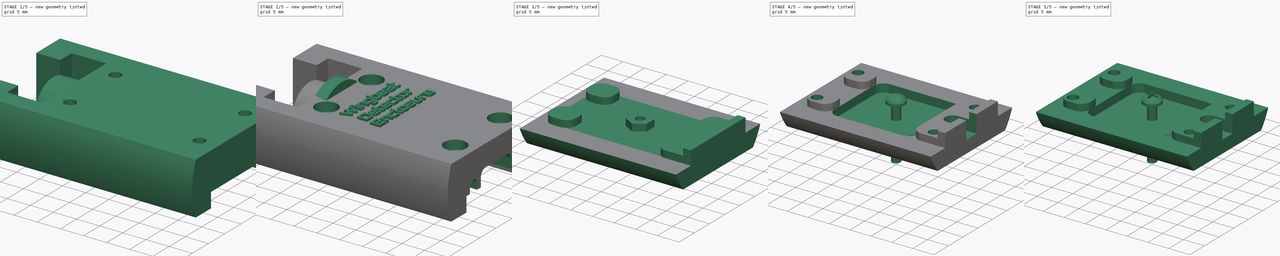
[diagram: build sequence overview — one tinted view per stage of 5, left to right]
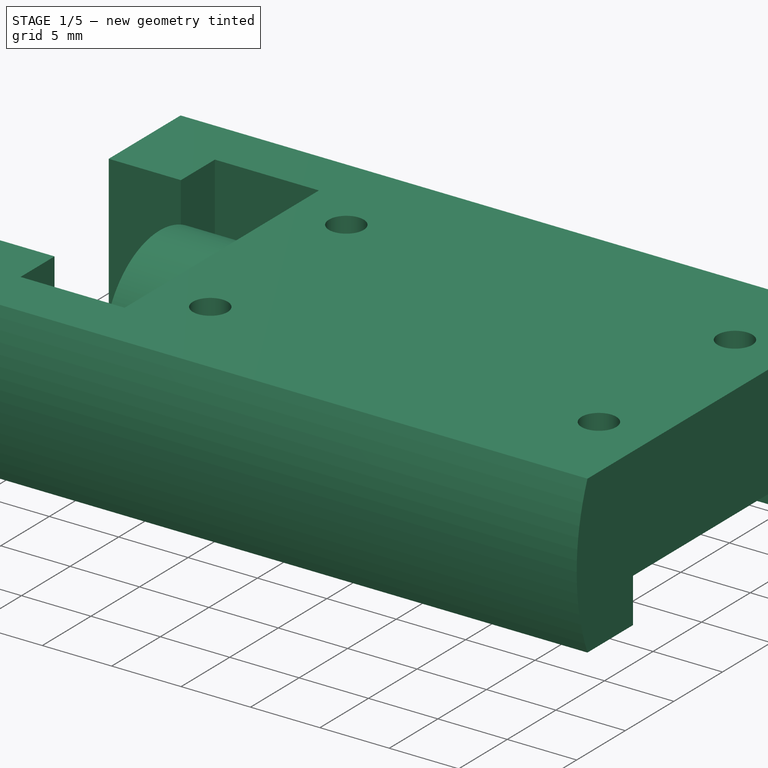
[diagram: stage 1 of 5 — iso view after this stage's code; geometry added in this stage tinted green]
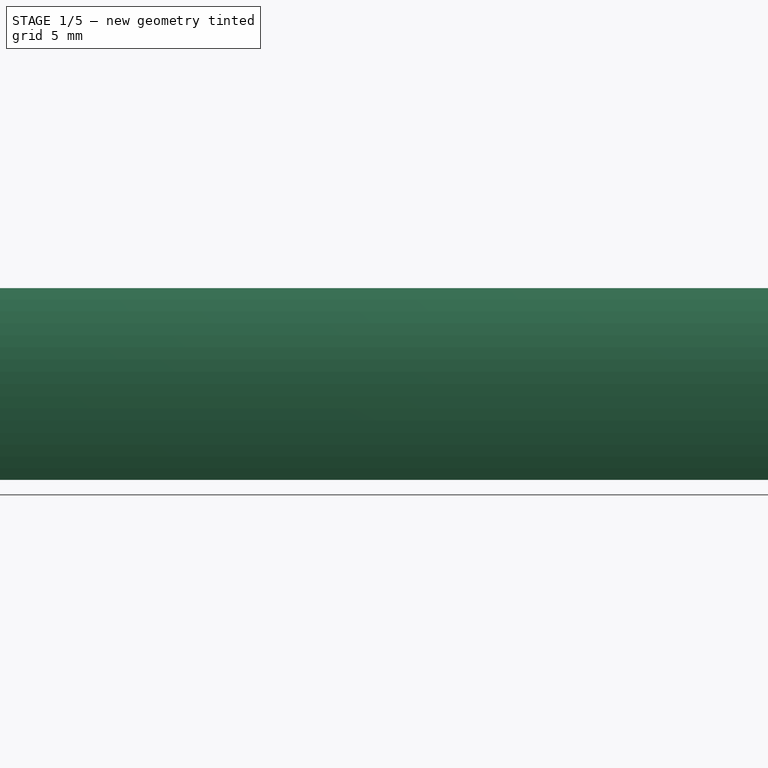
[diagram: stage 1 of 5 — front view after this stage's code; geometry added in this stage tinted green]
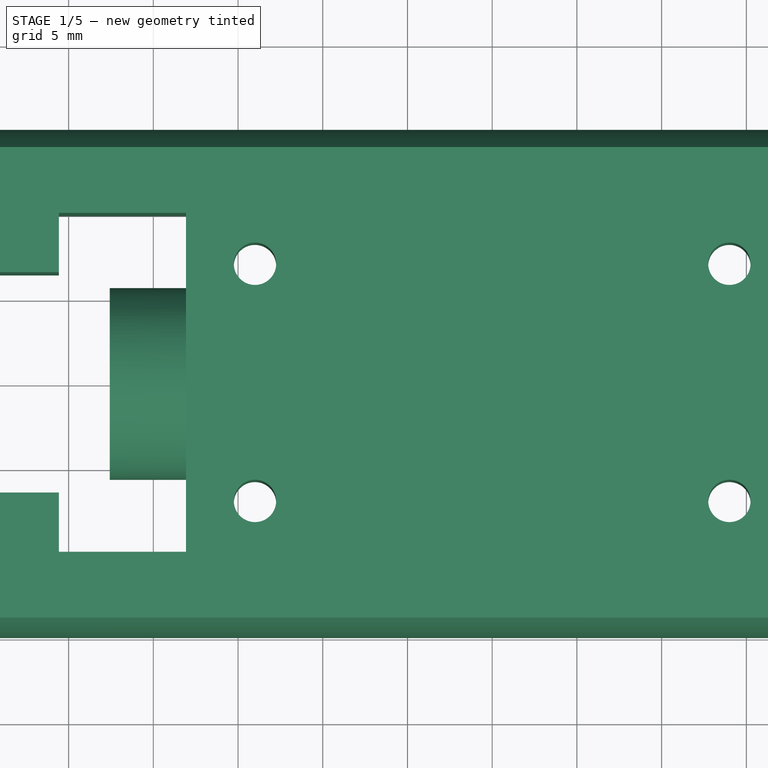
[diagram: stage 1 of 5 — top view after this stage's code; geometry added in this stage tinted green]
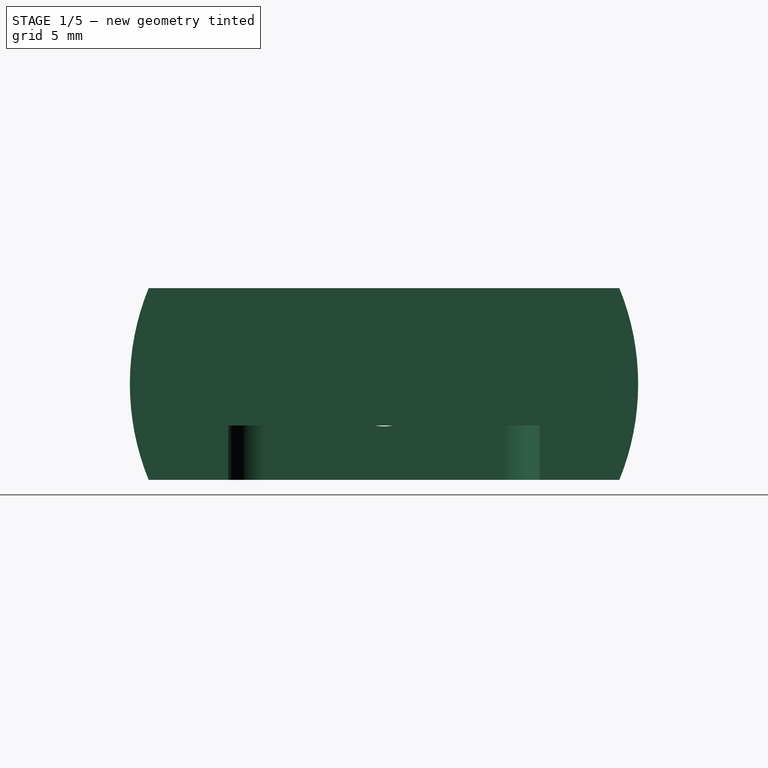
[diagram: stage 1 of 5 — right view after this stage's code; geometry added in this stage tinted green]
FCSTD DOCUMENT  (FreeCAD 0.21R33771 (Git))
Label: wingbeat_detector
License: All rights reserved
LicenseURL: http://en.wikipedia.org/wiki/All_rights_reserved
objects: App::Part×42, Part::Feature×37, Sketcher::SketchObject×36, PartDesign::Pad×21, PartDesign::Pocket×16, PartDesign::Plane×11, PartDesign::Body×10, PartDesign::SubShapeBinder×6, Part::Part2DObjectPython×5, PartDesign::Revolution×4, PartDesign::Chamfer×1
note: 189 computed .brp shape members not serialized (recipe doc carries the construction recipe); baked Part::Feature solids carry a one-line shape summary decoded from their .brp

FEATURE [Part::Feature] Part__Feature  label="COMPOUND"
  shape: bbox 9.652 x 4.677 x 8.702 mm, 2198 faces, 0 solids (baked)
FEATURE [App::Part] USB_C_10137062_00021LF  label="USB_C_10137062-00021LF"
  Group = -> [Part__Feature]
  Origin = -> Origin
  Placement = pos=(11.35,0.05,1.65) rot=(0.57735,0.57735,0.57735;2.0944rad)
FEATURE [Part::Feature] Part__Feature001  label="SOLID"
  shape: bbox 1 x 0.5 x 0.35 mm, 26 faces (baked)
FEATURE [App::Part] R_0402_1005Metric
  Group = -> [Part__Feature001]
  Origin = -> Origin001
  Placement = pos=(-8,3.5,1.65) rot=(0,0,1;0rad)
FEATURE [Part::Feature] Part__Feature002  label="SOLID001"
  shape: bbox 10.3 x 10.3 x 2.75 mm, 276 faces (baked)
FEATURE [App::Part] SOIC_16W_7_5x10_3mm_P1_27mm  label="SOIC-16W_7.5x10.3mm_P1.27mm"
  Group = -> [Part__Feature002]
  Origin = -> Origin002
  Placement = pos=(1,0,1.65) rot=(0,0,-1;1.5708rad)
FEATURE [Part::Feature] Part__Feature003  label="SOLID002"
  shape: bbox 3.2 x 1.6 x 0.55 mm, 26 faces (baked)
FEATURE [App::Part] R_1206_3216Metric
  Group = -> [Part__Feature003]
  Origin = -> Origin003
  Placement = pos=(-8,5.5,1.65) rot=(0,0,1;0rad)
FEATURE [Part::Feature] Part__Feature004  label="SOLID003"
  shape: bbox 1 x 0.5 x 0.35 mm, 26 faces (baked)
FEATURE [App::Part] R_0402_1005Metric001
  Group = -> [Part__Feature004]
  Origin = -> Origin004
  Placement = pos=(1,-7,1.65) rot=(0,0,1;1.5708rad)
FEATURE [Part::Feature] Part__Feature005  label="SOLID004"
  shape: bbox 1.6 x 0.8 x 0.45 mm, 26 faces (baked)
FEATURE [App::Part] R_0603_1608Metric
  Group = -> [Part__Feature005]
  Origin = -> Origin005
  Placement = pos=(3.5,-7,1.65) rot=(0,0,1;3.14159rad)
FEATURE [Part::Feature] Part__Feature006  label="SOLID005"
  shape: bbox 1.6 x 0.8 x 0.45 mm, 26 faces (baked)
FEATURE [App::Part] R_0603_1608Metric001
  Group = -> [Part__Feature006]
  Origin = -> Origin006
  Placement = pos=(-3.5,7,1.65) rot=(0,0,1;0rad)
FEATURE [Part::Feature] Part__Feature007  label="SOLID006"
  shape: bbox 1 x 0.5 x 0.5 mm, 28 faces (baked)
FEATURE [App::Part] C_0402_1005Metric
  Group = -> [Part__Feature007]
  Origin = -> Origin007
  Placement = pos=(-3.5,-7,1.65) rot=(0,0,1;1.5708rad)
FEATURE [Part::Feature] Part__Feature008  label="SOLID007"
  shape: bbox 4.8 x 4.8 x 14.6 mm, 50 faces (baked)
FEATURE [App::Part] DIODE_RADIAL_RA_SMD_BRIGHT
  Group = -> [Part__Feature008]
  Origin = -> Origin008
  Placement = pos=(-11.575,0,4.05) rot=(0.57735,-0.57735,-0.57735;2.0944rad)
FEATURE [Part::Feature] Part__Feature009  label="COMPOUND001"
  shape: bbox 3.1 x 1.25 x 3 mm, 109 faces, 7 solids (baked)
FEATURE [App::Part] UMC_A_1JB  label="UMC_A-1JB"
  Group = -> [Part__Feature009]
  Origin = -> Origin009
  Placement = pos=(-8,-5,1.65) rot=(1,0,0;1.5708rad)
FEATURE [Part::Feature] Part__Feature010  label="SOLID008"
  shape: bbox 1 x 0.5 x 0.5 mm, 28 faces (baked)
FEATURE [App::Part] C_0402_1005Metric001
  Group = -> [Part__Feature010]
  Origin = -> Origin010
  Placement = pos=(-2,-7,1.65) rot=(0,0,-1;1.5708rad)
FEATURE [Part::Feature] Part__Feature011  label="SOLID009"
  shape: bbox 1 x 0.5 x 0.35 mm, 26 faces (baked)
FEATURE [App::Part] R_0402_1005Metric002
  Group = -> [Part__Feature011]
  Origin = -> Origin011
  Placement = pos=(3,7,1.65) rot=(0,0,1;0rad)
FEATURE [Part::Feature] Part__Feature012  label="SOLID010"
  shape: bbox 1 x 0.5 x 0.5 mm, 28 faces (baked)
FEATURE [App::Part] C_0402_1005Metric002
  Group = -> [Part__Feature012]
  Origin = -> Origin012
  Placement = pos=(-4.75,7,-0.05) rot=(0.707107,0.707107,0;3.14159rad)
FEATURE [Part::Feature] Part__Feature013  label="SOLID011"
  shape: bbox 1 x 0.5 x 0.35 mm, 26 faces (baked)
FEATURE [App::Part] R_0402_1005Metric003
  Group = -> [Part__Feature013]
  Origin = -> Origin013
  Placement = pos=(-1.75,7,-0.05) rot=(0.707107,-0.707107,0;3.14159rad)
FEATURE [Part::Feature] Part__Feature014  label="SOLID012"
  shape: bbox 1.6 x 0.8 x 0.8 mm, 28 faces (baked)
FEATURE [App::Part] C_0603_1608Metric
  Group = -> [Part__Feature014]
  Origin = -> Origin014
  Placement = pos=(6.5,5.25,-0.05) rot=(0.707107,0.707107,0;3.14159rad)
FEATURE [Part::Feature] Part__Feature015  label="SOLID013"
  shape: bbox 1.6 x 0.8 x 0.8 mm, 28 faces (baked)
FEATURE [App::Part] C_0603_1608Metric001
  Group = -> [Part__Feature015]
  Origin = -> Origin015
  Placement = pos=(4.5,-5.25,-0.05) rot=(0.707107,0.707107,0;3.14159rad)
FEATURE [Part::Feature] Part__Feature016  label="SOLID014"
  shape: bbox 1.6 x 0.8 x 0.8 mm, 28 faces (baked)
FEATURE [App::Part] C_0603_1608Metric002
  Group = -> [Part__Feature016]
  Origin = -> Origin016
  Placement = pos=(4.5,5.25,-0.05) rot=(0.707107,0.707107,0;3.14159rad)
FEATURE [Part::Feature] Part__Feature017  label="SOLID015"
  shape: bbox 1 x 0.5 x 0.35 mm, 26 faces (baked)
FEATURE [App::Part] R_0402_1005Metric004
  Group = -> [Part__Feature017]
  Origin = -> Origin017
  Placement = pos=(-0.25,7,-0.05) rot=(0.707107,0.707107,0;3.14159rad)
FEATURE [Part::Feature] Part__Feature018  label="SOLID016"
  shape: bbox 3.02 x 3 x 1 mm, 56 faces (baked)
FEATURE [App::Part] VSON_8_3x3mm_P0_65mm  label="VSON-8_3x3mm_P0.65mm"
  Group = -> [Part__Feature018]
  Origin = -> Origin018
  Placement = pos=(-10.5,0,-0.05) rot=(0.707107,0.707107,0;3.14159rad)
FEATURE [Part::Feature] Part__Feature019  label="SOLID017"
  shape: bbox 1 x 0.5 x 0.35 mm, 26 faces (baked)
FEATURE [App::Part] R_0402_1005Metric005
  Group = -> [Part__Feature019]
  Origin = -> Origin019
  Placement = pos=(-1.75,-7,-0.05) rot=(0.707107,-0.707107,0;3.14159rad)
FEATURE [Part::Feature] Part__Feature020  label="SOLID018"
  shape: bbox 3.2 x 1.6 x 0.55 mm, 26 faces (baked)
FEATURE [App::Part] R_1206_3216Metric001
  Group = -> [Part__Feature020]
  Origin = -> Origin020
  Placement = pos=(-13.75,0,-0.05) rot=(0.707107,0.707107,0;3.14159rad)
FEATURE [Part::Feature] Part__Feature021  label="COMPOUND002"
  shape: bbox 4.905 x 1.1 x 3 mm, 126 faces, 9 solids (baked)
FEATURE [App::Part] MAX865EUA
  Group = -> [Part__Feature021]
  Origin = -> Origin021
  Placement = pos=(5.5,0,-0.05) rot=(0.57735,0.57735,-0.57735;4.18879rad)
FEATURE [Part::Feature] Part__Feature022  label="SOLID019"
  shape: bbox 10.3 x 10.3 x 2.75 mm, 276 faces (baked)
FEATURE [App::Part] SOIC_16W_7_5x10_3mm_P1_27mm001  label="SOIC-16W_7.5x10.3mm_P1.27mm001"
  Group = -> [Part__Feature022]
  Origin = -> Origin022
  Placement = pos=(-2.5,0,-0.05) rot=(0.707107,0.707107,0;3.14159rad)
FEATURE [Part::Feature] Part__Feature023  label="COMPOUND003"
  shape: bbox 3.1 x 1.25 x 3 mm, 109 faces, 7 solids (baked)
FEATURE [App::Part] UMC_A_1JB001  label="UMC_A-1JB001"
  Group = -> [Part__Feature023]
  Origin = -> Origin023
  Placement = pos=(13.5,0,-0.05) rot=(-1,0,0;1.5708rad)
FEATURE [Part::Feature] Part__Feature024  label="SOLID020"
  shape: bbox 1 x 0.5 x 0.5 mm, 28 faces (baked)
FEATURE [App::Part] C_0402_1005Metric003
  Group = -> [Part__Feature024]
  Origin = -> Origin024
  Placement = pos=(-10.5,3,-0.05) rot=(0,1,0;3.14159rad)
FEATURE [Part::Feature] Part__Feature025  label="SOLID021"
  shape: bbox 1 x 0.5 x 0.5 mm, 28 faces (baked)
FEATURE [App::Part] C_0402_1005Metric004
  Group = -> [Part__Feature025]
  Origin = -> Origin025
  Placement = pos=(-6.25,7,-0.05) rot=(0.707107,-0.707107,0;3.14159rad)
FEATURE [Part::Feature] Part__Feature026  label="SOLID022"
  shape: bbox 1 x 0.5 x 0.35 mm, 26 faces (baked)
FEATURE [App::Part] R_0402_1005Metric006
  Group = -> [Part__Feature026]
  Origin = -> Origin026
  Placement = pos=(2.75,7,-0.05) rot=(0.707107,-0.707107,0;3.14159rad)
FEATURE [Part::Feature] Part__Feature027  label="SOLID023"
  shape: bbox 1.6 x 0.8 x 0.8 mm, 28 faces (baked)
FEATURE [App::Part] C_0603_1608Metric003
  Group = -> [Part__Feature027]
  Origin = -> Origin027
  Placement = pos=(8.5,0,-0.05) rot=(0.707107,-0.707107,0;3.14159rad)
FEATURE [Part::Feature] Part__Feature028  label="SOLID024"
  shape: bbox 1.6 x 0.8 x 0.8 mm, 28 faces (baked)
FEATURE [App::Part] C_0603_1608Metric004
  Group = -> [Part__Feature028]
  Origin = -> Origin028
  Placement = pos=(6.5,-5.25,-0.05) rot=(0.707107,-0.707107,0;3.14159rad)
FEATURE [Part::Feature] Part__Feature029  label="SOLID025"
  shape: bbox 1 x 0.5 x 0.5 mm, 28 faces (baked)
FEATURE [App::Part] C_0402_1005Metric005
  Group = -> [Part__Feature029]
  Origin = -> Origin029
  Placement = pos=(-10.5,-3,-0.05) rot=(0,1,0;3.14159rad)
FEATURE [Part::Feature] Part__Feature030  label="wingbeat_detector PCB"
  shape: bbox 32 x 18 x 1.6 mm, 159 faces (baked)
FEATURE [Part::Feature] Part__Feature031  label="plug001"
  shape: bbox 2.035 x 34.53 x 2.986 mm, 254 faces (baked)
FEATURE [App::Part] Part  label="plug"
  Group = -> [Part__Feature031]
  Origin = -> Origin031
  Placement = pos=(13.5,1.5e-15,-2.13) rot=(-0.57735,0.57735,-0.57735;4.18879rad)
FEATURE [Part::Feature] Part__Feature032  label="llg001"
  shape: bbox 9 x 120.2 x 9 mm, 17 faces, 2 solids (baked)
FEATURE [App::Part] Part001  label="llg"
  Group = -> [Part__Feature032]
  Origin = -> Origin032
  Placement = pos=(-90.05,2e-14,4.05) rot=(0,0,1;4.71239rad)
FEATURE [Part::Feature] Part__Feature033  label="tube001"
  Placement = pos=(0,-0.075,-1.075) rot=(0,0,1;0rad)
  shape: bbox 26.16 x 19.05 x 19.05 mm, 326 faces, 3 solids (baked)
FEATURE [App::Part] Part002  label="tube"
  Group = -> [Part__Feature033]
  Origin = -> Origin033
  Placement = pos=(-33.3,0,4.05) rot=(0,-1,0;3.14159rad)
FEATURE [Part::Feature] Part__Feature034  label="filter001"
  shape: bbox 12.5 x 12.5 x 2 mm, 4 faces (baked)
FEATURE [App::Part] Part003  label="filter"
  Group = -> [Part__Feature034]
  Origin = -> Origin034
  Placement = pos=(-32.95,0,4.05) rot=(0,1,0;4.71239rad)
FEATURE [Part::Feature] Part__Feature035  label="adapter-llg001"
  shape: bbox 24.99 x 26.29 x 26.29 mm, 30 faces (baked)
FEATURE [App::Part] Part004  label="adapter-llg"
  Group = -> [Part__Feature035]
  Origin = -> Origin035
  Placement = pos=(-45.95,0,4.05) rot=(0,-1,0;3.14159rad)
FEATURE [Part::Feature] Part__Feature036  label="adapter-tube001"
  shape: bbox 30.48 x 30.48 x 6.35 mm, 435 faces (baked)
FEATURE [App::Part] Part005  label="adapter-tube"
  Group = -> [Part__Feature036]
  Origin = -> Origin036
  Placement = pos=(-44.65,0,4.05) rot=(0,1,0;1.5708rad)
FEATURE [App::Part] Part007  label="pcb001"
  Group = -> [Part__Feature030]
  Origin = -> Origin039
FEATURE [App::Part] wingbeat_detector_1  label="pcb"
  Group = -> [USB_C_10137062_00021LF,R_0402_1005Metric,SOIC_16W_7_5x10_3mm_P1_27mm,R_1206_3216Metric,R_0402_1005Metric001,R_0603_1608Metric,R_0603_1608Metric001,C_0402_1005Metric,DIODE_RADIAL_RA_SMD_BRIGHT,UMC_A_1JB,C_0402_1005Metric001,R_0402_1005Metric002,C_0402_1005Metric002,R_0402_1005Metric003,C_0603_1608Metric,C_0603_1608Metric001,C_0603_1608Metric002,R_0402_1005Metric004,VSON_8_3x3mm_P0_65mm,+12 more]
  Origin = -> Origin030
FEATURE [PartDesign::SubShapeBinder] Binder
  BindCopyOnChange = 0
  BindMode = 0
  ClaimChildren = false
  Context = -> Part008 [Body001.Binder.]
  Fuse = false
  MakeFace = true
  OffsetFill = false
  OffsetIntersection = false
  OffsetJoinType = 0
  OffsetOpenResult = false
  PartialLoad = false
  Relative = true
  Support = -> [wingbeat_detector_1[Part007.Part__Feature030.Face5,Part007.Part__Feature030.Face4,Part007.Part__Feature030.Face47,Part007.Part__Feature030.Face30,Part007.Part__Feature030.Face23,DIODE_RADIAL_RA_SMD_BRIGHT.Part__Feature008.Face4,DIODE_RADIAL_RA_SMD_BRIGHT.Part__Feature008.Face8,DIODE_RADIAL_RA_SMD_BRIGHT.Part__Feature008.Face18]]
  _Version = 2
FEATURE [PartDesign::Plane] DatumPlane
  Length = 60
  MapMode = 5
  Placement = pos=(-16,0,0) rot=(0.57735,-0.57735,-0.57735;2.0944rad)
  ResizeMode = 0
  Support = -> [Binder]
  Width = 60
FEATURE [PartDesign::Plane] DatumPlane001
  AttachmentOffset = pos=(0,0,2) rot=(0,0,1;0rad)
  Length = 60
  MapMode = 5
  Placement = pos=(18,0,0) rot=(0.57735,0.57735,0.57735;2.0944rad)
  ResizeMode = 0
  Support = -> [Binder]
  Width = 60
FEATURE [PartDesign::Plane] DatumPlane002
  Length = 66.3328
  MapMode = 5
  Placement = pos=(0,0,1.6) rot=(0,0,1;0rad)
  ResizeMode = 0
  Support = -> [Binder]
  Width = 60.5614
FEATURE [PartDesign::SubShapeBinder] Binder001
  BindCopyOnChange = 0
  BindMode = 0
  ClaimChildren = false
  Context = -> Part008 [Body001.Binder001.]
  Fuse = false
  MakeFace = true
  OffsetFill = false
  OffsetIntersection = false
  OffsetJoinType = 0
  OffsetOpenResult = false
  PartialLoad = false
  Relative = true
  Support = -> [Part002[Part__Feature033.Face13,Part__Feature033.Face16,Part__Feature033.Face8,Part__Feature033.Face302,Part__Feature033.Face300,Part__Feature033.Face17,Part__Feature033.Face7,Part__Feature033.Face18]]
  _Version = 2
FEATURE [PartDesign::Plane] DatumPlane003
  Length = 60
  MapMode = 5
  Placement = pos=(-18.0714,0,0) rot=(0.57735,0.57735,0.57735;2.0944rad)
  ResizeMode = 0
  Support = -> [Binder001]
  Width = 60
FEATURE [PartDesign::Plane] DatumPlane004
  Length = 60
  MapMode = 5
  Placement = pos=(-30.7714,0,0) rot=(0.57735,0.57735,0.57735;2.0944rad)
  ResizeMode = 0
  Support = -> [Binder001]
  Width = 60
FEATURE [Sketcher::SketchObject] Sketch
  ExternalGeometry = -> [Binder001,Binder]
  FullyConstrained = true
  MapMode = 5
  Placement = pos=(-18.0714,0,0) rot=(0.57735,0.57735,0.57735;2.0944rad)
  Support = -> [DatumPlane003]
  sketch-geometry (4):
    g0: Circle CenterX=0 CenterY=4.05 CenterZ=0 NormalX=0 NormalY=0 NormalZ=1 AngleXU=0 Radius=2.5
    g1: Circle CenterX=0 CenterY=4.05 CenterZ=0 NormalX=0 NormalY=0 NormalZ=1 AngleXU=0 Radius=5.66111
    g2: GeomPoint X=0.00498637 Y=9.7111 Z=0
    g3: GeomPoint X=9e-16 Y=6.55 Z=0
  constraints (8):
    c: Coincident(g0,g-5)
    c: Coincident(g1,g0)
    c: PointOnObject(g2,g1)
    c: Vertical(g2,g-4)
    c: DistanceY(g2,g-4) = 0.05
    c: PointOnObject(g3,g0)
    c: Vertical(g3,g-5)
    c: DistanceY(g-5,g3) = 0.1
FEATURE [PartDesign::Pad] Pad  label="InnerTube"
  Direction = (1,0,0)
  Length = 4.5
  Length2 = 10
  Placement = pos=(-18.0714,0,0) rot=(0.57735,0.57735,0.57735;2.0944rad)
  Profile = -> Sketch
  ReferenceAxis = -> Sketch [N_Axis]
  Reversed = true
  Type = 0
FEATURE [Sketcher::SketchObject] Sketch001
  ExternalGeometry = -> [Pad]
  FullyConstrained = true
  MapMode = 5
  Placement = pos=(-18.0714,0,0) rot=(0.57735,0.57735,0.57735;2.0944rad)
  Support = -> [Pad]
  sketch-geometry (4):
    g0: ArcOfCircle CenterX=3.4e-15 CenterY=4.05 CenterZ=0 NormalX=0 NormalY=0 NormalZ=1 AngleXU=0 Radius=15 StartAngle=2.7546 EndAngle=3.52859
    g1: LineSegment StartX=-13.8907 StartY=9.71111 StartZ=0 EndX=13.8907 EndY=9.71111 EndZ=0
    g2: LineSegment StartX=-13.8907 StartY=-1.61111 StartZ=0 EndX=13.8907 EndY=-1.61111 EndZ=0
    g3: ArcOfCircle CenterX=3.4e-15 CenterY=4.05 CenterZ=0 NormalX=0 NormalY=0 NormalZ=1 AngleXU=0 Radius=15 StartAngle=5.89619 EndAngle=6.67018
  constraints (12):
    c: Diameter(g0) = 30
    c: Horizontal(g1)
    c: Horizontal(g2)
    c: Tangent(g1,g-3)
    c: Tangent(g2,g-3)
    c: Coincident(g3,g1)
    c: Coincident(g0,g1)
    c: Equal(g0,g3)
    c: Coincident(g0,g2)
    c: Coincident(g3,g2)
    c: Coincident(g0,g3)
    c: Coincident(g0,g-3)
FEATURE [PartDesign::Pad] Pad001  label="MainBody"
  BaseFeature = -> Pad
  Direction = (1,1e-16,1e-16)
  Length = 10
  Length2 = 10
  Placement = pos=(-18.0714,0,0) rot=(0.57735,0.57735,0.57735;2.0944rad)
  Profile = -> Sketch001
  ReferenceAxis = -> Sketch001 [N_Axis]
  Type = 3
  UpToFace = -> DatumPlane001 [Plane]
FEATURE [Sketcher::SketchObject] Sketch002
  ExternalGeometry = -> [Pad001]
  FullyConstrained = true
  MapMode = 5
  Placement = pos=(-18.0714,0,0) rot=(0.57735,0.57735,-0.57735;4.18879rad)
  Support = -> [Pad001]
  sketch-geometry (8):
    g0: LineSegment StartX=-13.8907 StartY=1.61111 StartZ=0 EndX=-10 EndY=1.61111 EndZ=0
    g1: LineSegment StartX=-10 StartY=1.61111 StartZ=0 EndX=-10 EndY=-9.71111 EndZ=0
    g2: LineSegment StartX=-10 StartY=-9.71111 StartZ=0 EndX=-13.8907 EndY=-9.71111 EndZ=0
    g3: ArcOfCircle CenterX=3.4e-15 CenterY=-4.05 CenterZ=0 NormalX=0 NormalY=0 NormalZ=1 AngleXU=0 Radius=15 StartAngle=2.7546 EndAngle=3.52859
    g4: LineSegment StartX=13.8907 StartY=1.61111 StartZ=0 EndX=10 EndY=1.61111 EndZ=0
    g5: LineSegment StartX=10 StartY=1.61111 StartZ=0 EndX=10 EndY=-9.71111 EndZ=0
    g6: LineSegment StartX=10 StartY=-9.71111 StartZ=0 EndX=13.8907 EndY=-9.71111 EndZ=0
    g7: ArcOfCircle CenterX=3.4e-15 CenterY=-4.05 CenterZ=0 NormalX=0 NormalY=0 NormalZ=1 AngleXU=0 Radius=15 StartAngle=5.89619 EndAngle=6.67018
  constraints (21):
    c: Coincident(g-5,g0)
    c: Horizontal(g0)
    c: Coincident(g0,g1)
    c: Vertical(g1)
    c: Coincident(g1,g2)
    c: Coincident(g2,g-5)
    c: Horizontal(g2)
    c: Coincident(g3,g0)
    c: Coincident(g3,g2)
    c: Coincident(g3,g-5)
    c: Horizontal(g4)
    c: Coincident(g4,g5)
    c: Vertical(g5)
    c: Coincident(g5,g6)
    c: Horizontal(g6)
    c: Coincident(g7,g4)
    c: Coincident(g7,g6)
    c: Coincident(g6,g-4)
    c: Coincident(g7,g3)
    c: Symmetric(g0,g4,g-2)
    c: DistanceX(g0,g4) = 20
FEATURE [PartDesign::Pad] Pad002  label="Wings"
  BaseFeature = -> Pad001
  Direction = (-1,-2e-16,-2e-16)
  Length = 10
  Length2 = 10
  Placement = pos=(-18.0714,0,0) rot=(0.57735,0.57735,0.57735;2.0944rad)
  Profile = -> Sketch002
  ReferenceAxis = -> Sketch002 [N_Axis]
  Type = 3
  UpToFace = -> DatumPlane004 [Plane]
FEATURE [Sketcher::SketchObject] Sketch003
  ExternalGeometry = -> [Pad002]
  FullyConstrained = true
  MapMode = 5
  Placement = pos=(-30.7714,0,-1.4e-15) rot=(0.57735,0.57735,-0.57735;4.18879rad)
  Support = -> [Pad002]
  sketch-geometry (8):
    g0: LineSegment StartX=-10 StartY=1.61111 StartZ=0 EndX=-6.5 EndY=1.61111 EndZ=0
    g1: LineSegment StartX=-6.5 StartY=1.61111 StartZ=0 EndX=-6.5 EndY=-9.71111 EndZ=0
    g2: LineSegment StartX=-6.5 StartY=-9.71111 StartZ=0 EndX=-10 EndY=-9.71111 EndZ=0
    g3: LineSegment StartX=-10 StartY=-9.71111 StartZ=0 EndX=-10 EndY=1.61111 EndZ=0
    g4: LineSegment StartX=10 StartY=1.61111 StartZ=0 EndX=6.5 EndY=1.61111 EndZ=0
    g5: LineSegment StartX=6.5 StartY=1.61111 StartZ=0 EndX=6.5 EndY=-9.71111 EndZ=0
    g6: LineSegment StartX=6.5 StartY=-9.71111 StartZ=0 EndX=10 EndY=-9.71111 EndZ=0
    g7: LineSegment StartX=10 StartY=-9.71111 StartZ=0 EndX=10 EndY=1.61111 EndZ=0
  constraints (19):
    c: Coincident(g0,g1)
    c: Coincident(g1,g2)
    c: Coincident(g2,g3)
    c: Coincident(g3,g0)
    c: Horizontal(g0)
    c: Horizontal(g2)
    c: Vertical(g1)
    c: Coincident(g0,g-3)
    c: Coincident(g4,g5)
    c: Coincident(g5,g6)
    c: Coincident(g6,g7)
    c: Coincident(g7,g4)
    c: Horizontal(g6)
    c: Vertical(g5)
    c: Coincident(g4,g-4)
    c: Coincident(g2,g-3)
    c: Coincident(g6,g-4)
    c: Symmetric(g0,g4,g-2)
    c: DistanceX(g0,g4) = 13
FEATURE [PartDesign::Pad] Pad003  label="Tabs"
  BaseFeature = -> Pad002
  Direction = (-1,-1e-16,-1e-16)
  Length = 5
  Length2 = 10
  Offset = -3
  Placement = pos=(-18.0714,0,0) rot=(0.57735,0.57735,0.57735;2.0944rad)
  Profile = -> Sketch003
  ReferenceAxis = -> Sketch003 [N_Axis]
  Reversed = true
  Type = 3
  UpToFace = -> Pad002 [Face4]
FEATURE [Sketcher::SketchObject] Sketch005
  ExternalGeometry = -> [Binder]
  FullyConstrained = true
  MapMode = 5
  Placement = pos=(0,0,1.6) rot=(0,0,1;0rad)
  Support = -> [DatumPlane002]
  sketch-geometry (8):
    g0: ArcOfCircle CenterX=-14 CenterY=7 CenterZ=0 NormalX=0 NormalY=0 NormalZ=1 AngleXU=0 Radius=2.2 StartAngle=1.5708 EndAngle=3.14159
    g1: LineSegment StartX=-14 StartY=9.2 StartZ=0 EndX=20 EndY=9.2 EndZ=0
    g2: LineSegment StartX=20 StartY=9.2 StartZ=0 EndX=20 EndY=-9.2 EndZ=0
    g3: LineSegment StartX=20 StartY=-9.2 StartZ=0 EndX=-14 EndY=-9.2 EndZ=0
    g4: ArcOfCircle CenterX=-14 CenterY=-7 CenterZ=0 NormalX=0 NormalY=0 NormalZ=1 AngleXU=0 Radius=2.2 StartAngle=3.14159 EndAngle=4.71239
    g5: LineSegment StartX=-16.2 StartY=-7 StartZ=0 EndX=-16.2 EndY=7 EndZ=0
    g6: GeomPoint X=-16.2 Y=9.2 Z=0
    g7: GeomPoint X=20 Y=-9.2 Z=0
  constraints (19):
    c: Tangent(g0,g1) = 1.5708
    c: Tangent(g3,g4) = 1.5708
    c: Tangent(g4,g5) = 1.5708
    c: Tangent(g5,g0) = 1.5708
    c: Horizontal(g1)
    c: Horizontal(g3)
    c: Vertical(g2)
    c: Vertical(g5)
    c: PointOnObject(g6,g1)
    c: PointOnObject(g6,g5)
    c: PointOnObject(g7,g2)
    c: PointOnObject(g7,g3)
    c: DistanceY(g-3,g1) = 0.2
    c: Horizontal(g0,g-7)
    c: DistanceX(g0,g-6) = 0.2
    c: Coincident(g3,g2)
    c: Coincident(g2,g1)
    c: DistanceX(g-4,g1) = 4
    c: Coincident(g4,g-8)
FEATURE [PartDesign::Pocket] Pocket001  label="BoardPocket"
  BaseFeature = -> Pad003
  Direction = (0,0,-1)
  Length = 5
  Length2 = 5
  Placement = pos=(-18.0714,0,0) rot=(0.57735,0.57735,0.57735;2.0944rad)
  Profile = -> Sketch005
  ReferenceAxis = -> Sketch005 [N_Axis]
  Type = 1
FEATURE [Sketcher::SketchObject] Sketch006
  ExternalGeometry = -> [Binder,Sketch005]
  FullyConstrained = true
  MapMode = 5
  Placement = pos=(-18.0714,0,1.6) rot=(0.707107,0.707107,0;3.14159rad)
  Support = -> [Pocket001]
  sketch-geometry (14):
    g0: LineSegment StartX=2.6 StartY=1.87144 StartZ=0 EndX=2.6 EndY=5.07144 EndZ=0
    g1: ArcOfCircle CenterX=4.6 CenterY=5.07144 CenterZ=0 NormalX=0 NormalY=0 NormalZ=1 AngleXU=0 Radius=2 StartAngle=1.5708 EndAngle=3.14159
    g2: LineSegment StartX=4.6 StartY=7.07144 StartZ=0 EndX=7.2 EndY=7.07144 EndZ=0
    g3: ArcOfCircle CenterX=7.2 CenterY=9.07144 CenterZ=0 NormalX=0 NormalY=0 NormalZ=1 AngleXU=0 Radius=2 StartAngle=4.71239 EndAngle=6.28319
    g4: LineSegment StartX=9.2 StartY=9.07144 StartZ=0 EndX=9.2 EndY=27.0714 EndZ=0
    g5: ArcOfCircle CenterX=7.2 CenterY=27.0714 CenterZ=0 NormalX=0 NormalY=0 NormalZ=1 AngleXU=0 Radius=2 StartAngle=0 EndAngle=1.5708
    g6: ArcOfCircle CenterX=-7.2 CenterY=27.0714 CenterZ=0 NormalX=0 NormalY=0 NormalZ=1 AngleXU=0 Radius=2 StartAngle=1.5708 EndAngle=3.14159
    g7: LineSegment StartX=-9.2 StartY=27.0714 StartZ=0 EndX=-9.2 EndY=9.07144 EndZ=0
    g8: ArcOfCircle CenterX=-7.2 CenterY=9.07144 CenterZ=0 NormalX=0 NormalY=0 NormalZ=1 AngleXU=0 Radius=2 StartAngle=3.14159 EndAngle=4.71239
    g9: LineSegment StartX=-7.2 StartY=7.07144 StartZ=0 EndX=-4.6 EndY=7.07144 EndZ=0
    g10: ArcOfCircle CenterX=-4.6 CenterY=5.07144 CenterZ=0 NormalX=0 NormalY=0 NormalZ=1 AngleXU=0 Radius=2 StartAngle=3e-16 EndAngle=1.5708
    g11: LineSegment StartX=-2.6 StartY=5.07144 StartZ=0 EndX=-2.6 EndY=1.87144 EndZ=0
    g12: LineSegment StartX=-2.6 StartY=1.87144 StartZ=0 EndX=2.6 EndY=1.87144 EndZ=0
    g13: LineSegment StartX=-7.2 StartY=29.0714 StartZ=0 EndX=7.2 EndY=29.0714 EndZ=0
  constraints (35):
    c: Vertical(g0)
    c: Tangent(g0,g1) = 1.5708
    c: Tangent(g1,g2) = 1.5708
    c: Tangent(g2,g3) = -1.5708
    c: Tangent(g3,g4) = -1.5708
    c: Tangent(g4,g5) = -1.5708
    c: Tangent(g6,g7) = -1.5708
    c: Tangent(g7,g8) = -1.5708
    c: Tangent(g8,g9) = -1.5708
    c: Tangent(g9,g10) = 1.5708
    c: Tangent(g10,g11) = 1.5708
    c: Coincident(g11,g12)
    c: Coincident(g12,g0)
    c: Vertical(g11)
    c: Horizontal(g9)
    c: Horizontal(g2)
    c: Symmetric(g11,g0,g-2)
    c: Horizontal(g9,g1)
    c: DistanceY(g-7,g8) = 3
    c: DistanceX(g11,g-4) = 0.2
    c: Horizontal(g13)
    c: DistanceY(g6,g-6) = 3
    c: Equal(g6,g5)
    c: Equal(g6,g8)
    c: Equal(g6,g10)
    c: Equal(g6,g1)
    c: Equal(g6,g3)
    c: Radius(g6) = 2
    c: Tangent(g13,g6) = 1.5708
    c: Tangent(g13,g5) = 1.5708
    c: PointOnObject(g6,g-9)
    c: PointOnObject(g4,g-10)
    c: PointOnObject(g3,g-10)
    c: PointOnObject(g7,g-9)
    c: PointOnObject(g0,g-11)
FEATURE [PartDesign::Pocket] Pocket  label="ComponentsPocket"
  BaseFeature = -> Pocket001
  Direction = (0,1e-16,1)
  Length = 5
  Length2 = 5
  Placement = pos=(-18.0714,0,0) rot=(0.57735,0.57735,0.57735;2.0944rad)
  Profile = -> Sketch006
  ReferenceAxis = -> Sketch006 [N_Axis]
  Type = 0
FEATURE [Sketcher::SketchObject] Sketch007
  ExternalGeometry = -> [Pocket]
  FullyConstrained = true
  MapMode = 5
  Placement = pos=(-18.0714,0,0) rot=(0.57735,0.57735,-0.57735;4.18879rad)
  Support = -> [Pocket]
  sketch-geometry (1):
    g0: Circle CenterX=6.1e-15 CenterY=-4.05 CenterZ=0 NormalX=0 NormalY=0 NormalZ=1 AngleXU=0 Radius=2.5
  constraints (2):
    c: Coincident(g0,g-3)
    c: Equal(g0,g-3)
FEATURE [PartDesign::Pocket] Pocket002  label="LedPocket"
  BaseFeature = -> Pocket
  Direction = (1,3e-16,7e-16)
  Length = 5
  Length2 = 5
  Placement = pos=(-18.0714,0,0) rot=(0.57735,0.57735,0.57735;2.0944rad)
  Profile = -> Sketch007
  ReferenceAxis = -> Sketch007 [N_Axis]
  Type = 2
FEATURE [PartDesign::Body] Body005  label="screw004"
  Group = -> [Sketch017,Revolution003,Sketch018,Pocket006,Sketch019,Pad007]
  Origin = -> Origin046
  Placement = pos=(14,-7,7.75) rot=(0,0,1;0rad)
  Tip = -> Pad007
FEATURE [App::Part] Part009  label="Screws"
  Group = -> [Body002,Body003,Body004,Body005]
  Origin = -> Origin042
FEATURE [Sketcher::SketchObject] Sketch020
  ExternalGeometry = -> [Binder]
  FullyConstrained = true
  MapMode = 5
  Placement = pos=(-18.0714,-1.1e-15,9.71111) rot=(0,0,-1;1.5708rad)
  Support = -> [Pocket002]
  sketch-geometry (4):
    g0: Circle CenterX=-7 CenterY=32.0714 CenterZ=0 NormalX=0 NormalY=0 NormalZ=1 AngleXU=0 Radius=1.25
    g1: Circle CenterX=7 CenterY=32.0714 CenterZ=0 NormalX=0 NormalY=0 NormalZ=1 AngleXU=0 Radius=1.25
    g2: Circle CenterX=-7 CenterY=4.07144 CenterZ=0 NormalX=0 NormalY=0 NormalZ=1 AngleXU=0 Radius=1.25
    g3: Circle CenterX=7 CenterY=4.07144 CenterZ=0 NormalX=0 NormalY=0 NormalZ=1 AngleXU=0 Radius=1.25
  constraints (8):
    c: Coincident(g0,g-3)
    c: Coincident(g1,g-4)
    c: Coincident(g2,g-5)
    c: Coincident(g3,g-6)
    c: Equal(g0,g1)
    c: Equal(g0,g2)
    c: Equal(g0,g3)
    c: Diameter(g0) = 2.5
FEATURE [PartDesign::Pocket] Pocket007  label="ScrewHoles"
  BaseFeature = -> Pocket002
  Direction = (2e-16,-4e-16,-1)
  Length = 1.75
  Length2 = 5
  Placement = pos=(-18.0714,0,0) rot=(0.57735,0.57735,0.57735;2.0944rad)
  Profile = -> Sketch020
  ReferenceAxis = -> Sketch020 [N_Axis]
  Type = 1
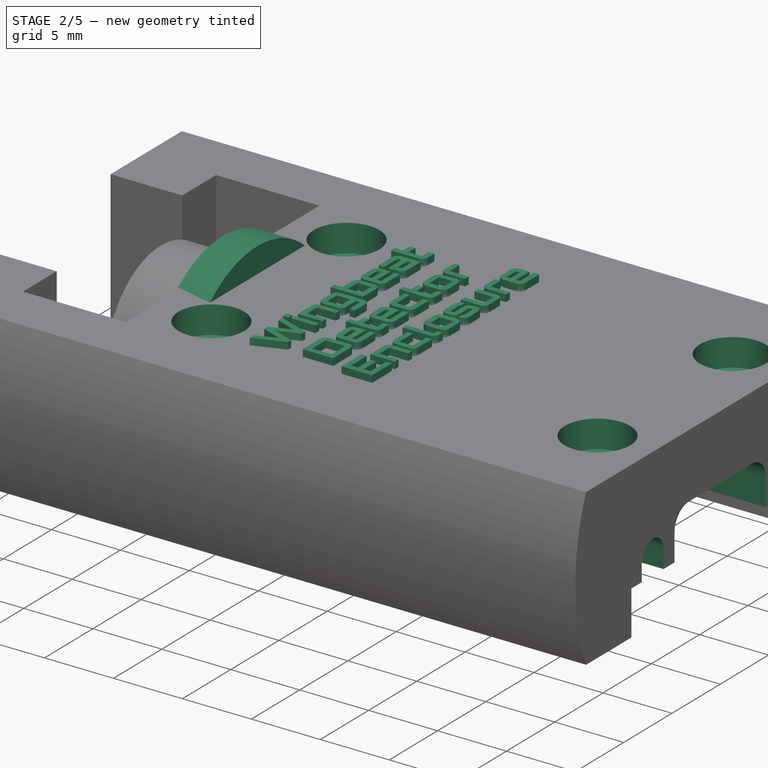
[diagram: stage 2 of 5 — iso view after this stage's code; geometry added in this stage tinted green]
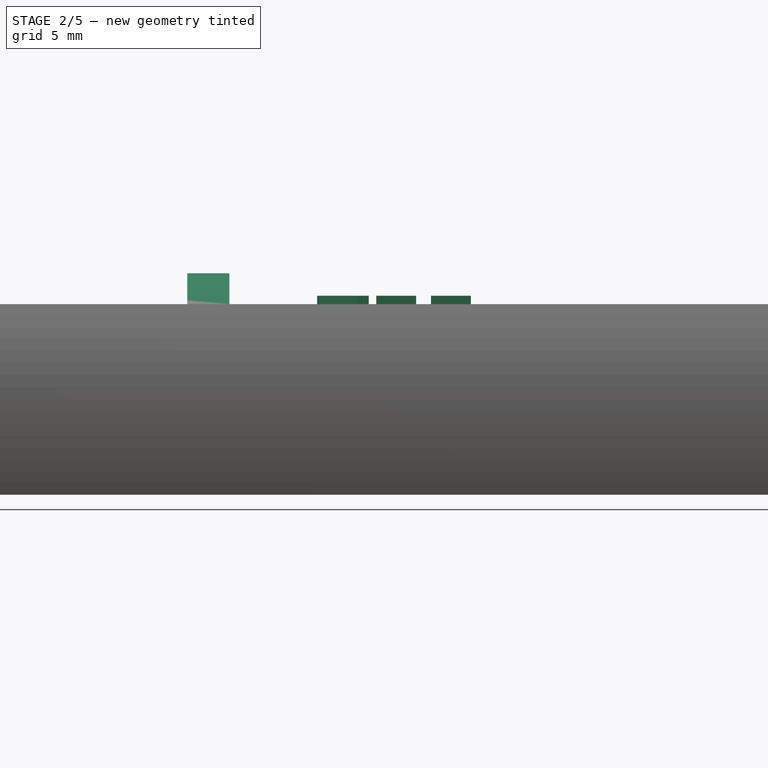
[diagram: stage 2 of 5 — front view after this stage's code; geometry added in this stage tinted green]
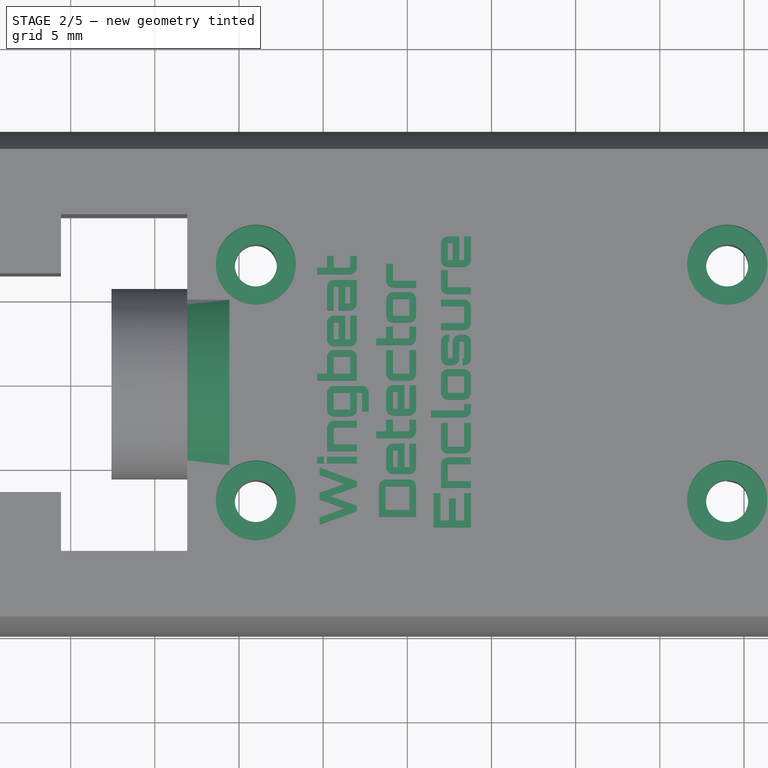
[diagram: stage 2 of 5 — top view after this stage's code; geometry added in this stage tinted green]
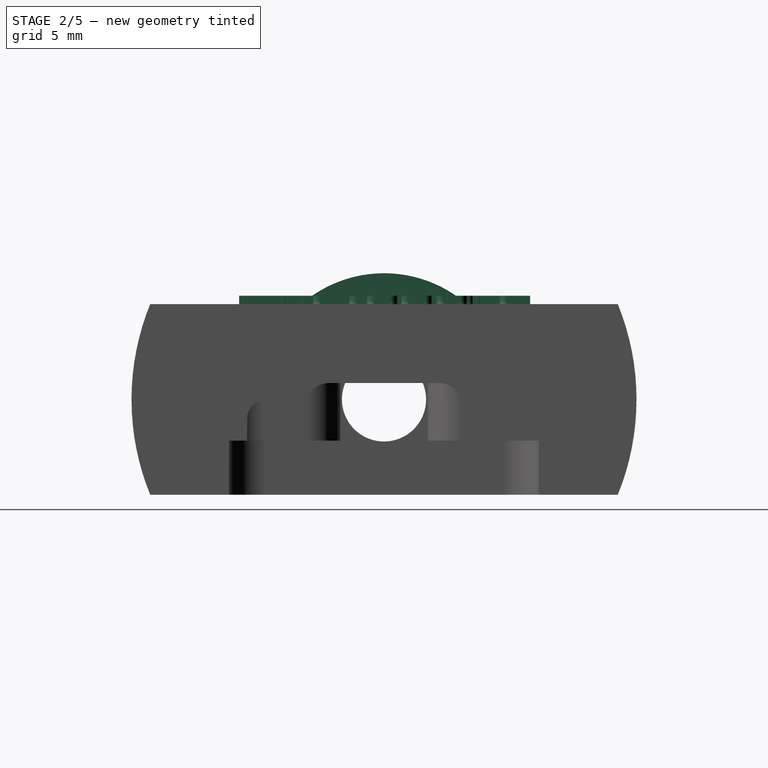
[diagram: stage 2 of 5 — right view after this stage's code; geometry added in this stage tinted green]
FEATURE [Sketcher::SketchObject] Sketch021
  ExternalGeometry = -> [Pocket007]
  FullyConstrained = true
  MapMode = 5
  Placement = pos=(-18.0714,-1.1e-15,9.71111) rot=(0,0,-1;1.5708rad)
  Support = -> [Pocket007]
  sketch-geometry (4):
    g0: Circle CenterX=-7 CenterY=32.0714 CenterZ=0 NormalX=0 NormalY=0 NormalZ=1 AngleXU=0 Radius=2.375
    g1: Circle CenterX=7 CenterY=32.0714 CenterZ=0 NormalX=0 NormalY=0 NormalZ=1 AngleXU=0 Radius=2.375
    g2: Circle CenterX=-7 CenterY=4.07144 CenterZ=0 NormalX=0 NormalY=0 NormalZ=1 AngleXU=0 Radius=2.375
    g3: Circle CenterX=7 CenterY=4.07144 CenterZ=0 NormalX=0 NormalY=0 NormalZ=1 AngleXU=0 Radius=2.375
  constraints (8):
    c: Coincident(g0,g-3)
    c: Coincident(g1,g-4)
    c: Coincident(g2,g-5)
    c: Coincident(g3,g-6)
    c: Equal(g0,g1)
    c: Equal(g0,g2)
    c: Equal(g0,g3)
    c: Diameter(g0) = 4.75
FEATURE [PartDesign::Pocket] Pocket008  label="HeadHoles"
  BaseFeature = -> Pocket007
  Direction = (2e-16,-6e-16,-1)
  Length = 2
  Length2 = 5
  Placement = pos=(-18.0714,0,0) rot=(0.57735,0.57735,0.57735;2.0944rad)
  Profile = -> Sketch021
  ReferenceAxis = -> Sketch021 [N_Axis]
  Type = 0
FEATURE [Sketcher::SketchObject] Sketch022
  ExternalGeometry = -> [Binder]
  FullyConstrained = true
  MapMode = 5
  Placement = pos=(18,0,4e-15) rot=(0.57735,0.57735,0.57735;2.0944rad)
  Support = -> [Pocket008]
  sketch-geometry (10):
    g0: ArcOfCircle CenterX=-3.24 CenterY=3.525 CenterZ=0 NormalX=0 NormalY=0 NormalZ=1 AngleXU=0 Radius=1.5 StartAngle=1.5708 EndAngle=3.14159
    g1: LineSegment StartX=-3.24 StartY=5.025 StartZ=0 EndX=3.24 EndY=5.025 EndZ=0
    g2: ArcOfCircle CenterX=3.24 CenterY=3.525 CenterZ=0 NormalX=0 NormalY=0 NormalZ=1 AngleXU=0 Radius=1.5 StartAngle=4.4e-15 EndAngle=1.5708
    g3: LineSegment StartX=4.74 StartY=3.525 StartZ=0 EndX=4.74 EndY=1.5 EndZ=0
    g4: ArcOfCircle CenterX=3.24 CenterY=1.5 CenterZ=0 NormalX=0 NormalY=0 NormalZ=1 AngleXU=0 Radius=1.5 StartAngle=4.71239 EndAngle=6.28319
    g5: LineSegment StartX=3.24 StartY=0 StartZ=0 EndX=-3.24 EndY=0 EndZ=0
    g6: ArcOfCircle CenterX=-3.24 CenterY=1.5 CenterZ=0 NormalX=0 NormalY=0 NormalZ=1 AngleXU=0 Radius=1.5 StartAngle=3.14159 EndAngle=4.71239
    g7: LineSegment StartX=-4.74 StartY=1.5 StartZ=0 EndX=-4.74 EndY=3.525 EndZ=0
    g8: GeomPoint X=-4.74 Y=5.025 Z=0
    g9: GeomPoint X=4.74 Y=0 Z=0
  constraints (22):
    c: Tangent(g0,g1) = 1.5708
    c: Tangent(g1,g2) = 1.5708
    c: Tangent(g2,g3) = 1.5708
    c: Tangent(g3,g4) = 1.5708
    c: Tangent(g4,g5) = 1.5708
    c: Tangent(g5,g6) = 1.5708
    c: Tangent(g6,g7) = 1.5708
    c: Tangent(g7,g0) = 1.5708
    c: Horizontal(g1)
    c: Horizontal(g5)
    c: Vertical(g3)
    c: Vertical(g7)
    c: Equal(g2,g4)
    c: Equal(g4,g6)
    c: PointOnObject(g8,g1)
    c: PointOnObject(g8,g7)
    c: PointOnObject(g9,g3)
    c: PointOnObject(g9,g5)
    c: DistanceY(g-4,g0) = 0.2
    c: Symmetric(g0,g2,g-2)
    c: PointOnObject(g-1,g5)
    c: Coincident(g0,g-3)
FEATURE [PartDesign::Pocket] Pocket009  label="UsbHole"
  BaseFeature = -> Pocket008
  Direction = (-1,0,-9e-16)
  Length = 0
  Length2 = 5
  Placement = pos=(-18.0714,0,0) rot=(0.57735,0.57735,0.57735;2.0944rad)
  Profile = -> Sketch022
  ReferenceAxis = -> Sketch022 [N_Axis]
  Type = 2
FEATURE [PartDesign::Plane] DatumPlane010
  AttachmentOffset = pos=(0,0,-2) rot=(0,0,1;0rad)
  Length = 60
  MapMode = 5
  Placement = pos=(14,0,0) rot=(0.57735,0.57735,0.57735;2.0944rad)
  ResizeMode = 0
  Support = -> [Binder]
  Width = 60
FEATURE [Sketcher::SketchObject] Sketch035
  ExternalGeometry = -> [Binder]
  FullyConstrained = true
  MapMode = 5
  Placement = pos=(14,0,0) rot=(0.57735,0.57735,0.57735;2.0944rad)
  Support = -> [DatumPlane010]
  sketch-geometry (4):
    g0: LineSegment StartX=-5.87 StartY=2.9 StartZ=0 EndX=-5.87 EndY=-0.9 EndZ=0
    g1: LineSegment StartX=-5.87 StartY=-0.9 StartZ=0 EndX=-8.13 EndY=-0.9 EndZ=0
    g2: LineSegment StartX=-8.13 StartY=-0.9 StartZ=0 EndX=-8.13 EndY=2.9 EndZ=0
    g3: ArcOfCircle CenterX=-7 CenterY=2.9 CenterZ=0 NormalX=0 NormalY=0 NormalZ=1 AngleXU=0 Radius=1.13 StartAngle=0 EndAngle=3.14159
  constraints (11):
    c: Vertical(g0)
    c: Coincident(g0,g1)
    c: Horizontal(g1)
    c: Coincident(g1,g2)
    c: Vertical(g2)
    c: Tangent(g2,g3) = 1.5708
    c: Tangent(g3,g0) = 1.5708
    c: Horizontal(g3,g-3)
    c: PointOnObject(g-4,g2)
    c: PointOnObject(g-4,g0)
    c: DistanceY(g1,g-4) = 2.5
FEATURE [PartDesign::Pocket] Pocket015  label="WirePocket"
  BaseFeature = -> Pocket009
  Direction = (-1,0,0)
  Length = 5
  Length2 = 5
  Placement = pos=(-18.0714,0,0) rot=(0.57735,0.57735,0.57735;2.0944rad)
  Profile = -> Sketch035
  ReferenceAxis = -> Sketch035 [N_Axis]
  Reversed = true
  Type = 1
FEATURE [Sketcher::SketchObject] Sketch036
  ExternalGeometry = -> [Sketch035]
  FullyConstrained = true
  MapMode = 5
  Placement = pos=(14,0,0) rot=(0.57735,0.57735,0.57735;2.0944rad)
  Support = -> [DatumPlane010]
  sketch-geometry (4):
    g0: LineSegment StartX=-5.5 StartY=2.9 StartZ=0 EndX=-5.5 EndY=-0.9 EndZ=0
    g1: LineSegment StartX=-5.5 StartY=-0.9 StartZ=0 EndX=-8.5 EndY=-0.9 EndZ=0
    g2: LineSegment StartX=-8.5 StartY=-0.9 StartZ=0 EndX=-8.5 EndY=2.9 EndZ=0
    g3: ArcOfCircle CenterX=-7 CenterY=2.9 CenterZ=0 NormalX=0 NormalY=0 NormalZ=1 AngleXU=0 Radius=1.5 StartAngle=3e-16 EndAngle=3.14159
  constraints (10):
    c: Vertical(g0)
    c: Coincident(g0,g1)
    c: Horizontal(g1)
    c: Coincident(g1,g2)
    c: Vertical(g2)
    c: Tangent(g2,g3) = 1.5708
    c: Tangent(g3,g0) = 1.5708
    c: Coincident(g3,g-3)
    c: Horizontal(g1,g-5)
    c: DistanceX(g2,g0) = 3
FEATURE [PartDesign::Pocket] Pocket016  label="HeatShrinkPocket"
  BaseFeature = -> Pocket015
  Direction = (-1,0,0)
  Length = 10
  Length2 = 5
  Placement = pos=(-18.0714,0,0) rot=(0.57735,0.57735,0.57735;2.0944rad)
  Profile = -> Sketch036
  ReferenceAxis = -> Sketch036 [N_Axis]
  Type = 0
FEATURE [PartDesign::Chamfer] Chamfer  label="LedClearance"
  Angle = 45
  Base = -> Pocket016 [Edge12]
  BaseFeature = -> Pocket016
  ChamferType = 1
  FlipDirection = false
  Placement = pos=(-18.0714,0,0) rot=(0.57735,0.57735,0.57735;2.0944rad)
  Size = 2
  Size2 = 4.49
  SupportTransform = false
  UseAllEdges = false
FEATURE [Sketcher::SketchObject] Sketch037
  ExternalGeometry = -> [Binder001,Chamfer]
  FullyConstrained = true
  MapMode = 5
  Placement = pos=(-18.0714,0,0) rot=(0.57735,0.57735,-0.57735;4.18879rad)
  Support = -> [Chamfer]
  sketch-geometry (2):
    g0: ArcOfCircle CenterX=0.00498637 CenterY=-4.0461 CenterZ=0 NormalX=0 NormalY=0 NormalZ=1 AngleXU=0 Radius=7.5 StartAngle=3.99776 EndAngle=5.42702
    g1: LineSegment StartX=-4.91007 StartY=-9.71111 StartZ=0 EndX=4.92004 EndY=-9.71111 EndZ=0
  constraints (6):
    c: PointOnObject(g0,g-7)
    c: PointOnObject(g0,g-7)
    c: Coincident(g1,g0)
    c: Coincident(g1,g0)
    c: Radius(g0) = 7.5
    c: Coincident(g0,g-6)
FEATURE [PartDesign::Pad] Pad015  label="LightBlocker"
  BaseFeature = -> Chamfer
  Direction = (-1,-1e-16,1e-16)
  Length = 2.5
  Length2 = 10
  Placement = pos=(-18.0714,0,0) rot=(0.57735,0.57735,0.57735;2.0944rad)
  Profile = -> Sketch037
  ReferenceAxis = -> Sketch037 [N_Axis]
  Reversed = true
  Type = 0
FEATURE [Part::Part2DObjectPython] ShapeString  label="ShapeStringWingbeat"  # Draft 2D object (typed FeaturePython)
  FontFile = /gnu/store/pv4si1wkwxbbgsq3ikqplmdpzklhb7r5-profile/share/fonts/truetype/Orbitron Bold.ttf
  MakeFace = true
  Placement = pos=(-7.99342,-8.55678,9.71) rot=(0,0,1;1.5708rad)
  Size = 1
  String = Wingbeat
  Tracking = 0
FEATURE [Part::Part2DObjectPython] ShapeString001  label="ShapeStringDetector"  # Draft 2D object (typed FeaturePython)
  FontFile = /gnu/store/pv4si1wkwxbbgsq3ikqplmdpzklhb7r5-profile/share/fonts/truetype/Orbitron Bold.ttf
  MakeFace = true
  Placement = pos=(-4.47724,-8.15231,9.71) rot=(0,0,1;1.5708rad)
  Size = 1
  String = Detector
  Tracking = 0
FEATURE [PartDesign::Pad] Pad016  label="WingbeatText"
  BaseFeature = -> Pad015
  Direction = (-2e-16,-1e-16,1)
  Length = 0.5
  Length2 = 10
  Placement = pos=(-18.0714,0,0) rot=(0.57735,0.57735,0.57735;2.0944rad)
  Profile = -> ShapeString
  ReferenceAxis = -> ShapeString [N_Axis]
  Type = 0
FEATURE [Part::Part2DObjectPython] ShapeString002  # Draft 2D object (typed FeaturePython)
  FontFile = /gnu/store/pv4si1wkwxbbgsq3ikqplmdpzklhb7r5-profile/share/fonts/truetype/Orbitron Bold.ttf
  MakeFace = true
  Placement = pos=(-1.22286,-8.7851,9.71) rot=(0,0,1;1.5708rad)
  Size = 1
  String = Enclosure
  Tracking = 0
FEATURE [Part::Part2DObjectPython] ShapeString003  # Draft 2D object (typed FeaturePython)
  FontFile = /gnu/store/pv4si1wkwxbbgsq3ikqplmdpzklhb7r5-profile/share/fonts/truetype/Orbitron Bold.ttf
  MakeFace = true
  Placement = pos=(2.03045,-8.94393,9.71) rot=(0,0,1;1.5708rad)
  Size = 1
  String = Version 1.1
  Tracking = 0
FEATURE [PartDesign::Pad] Pad017  label="DetectorText"
  BaseFeature = -> Pad016
  Direction = (-2e-16,-1e-16,1)
  Length = 0.5
  Length2 = 10
  Placement = pos=(-18.0714,0,0) rot=(0.57735,0.57735,0.57735;2.0944rad)
  Profile = -> ShapeString001
  ReferenceAxis = -> ShapeString001 [N_Axis]
  Type = 0
FEATURE [PartDesign::Pad] Pad018  label="EnclosureText"
  BaseFeature = -> Pad017
  Direction = (-2e-16,-1e-16,1)
  Length = 0.5
  Length2 = 10
  Placement = pos=(-18.0714,0,0) rot=(0.57735,0.57735,0.57735;2.0944rad)
  Profile = -> ShapeString002
  ReferenceAxis = -> ShapeString002 [N_Axis]
  Type = 0
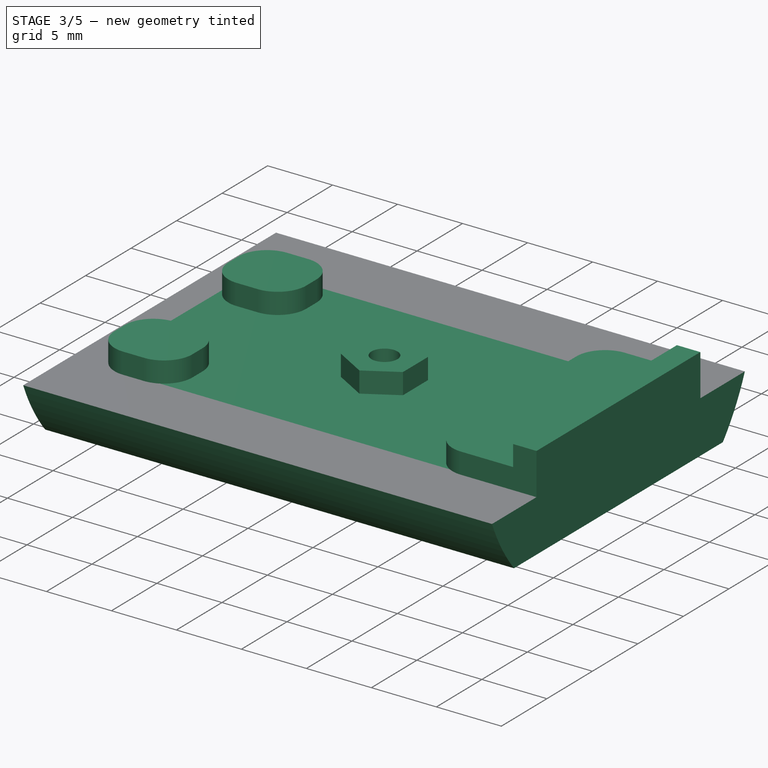
[diagram: stage 3 of 5 — iso view after this stage's code; geometry added in this stage tinted green]
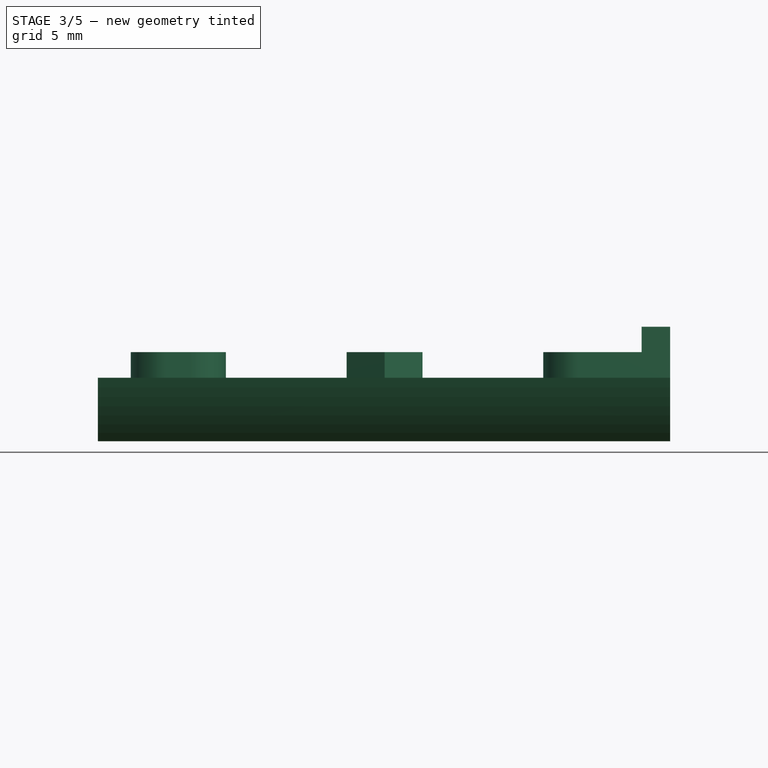
[diagram: stage 3 of 5 — front view after this stage's code; geometry added in this stage tinted green]
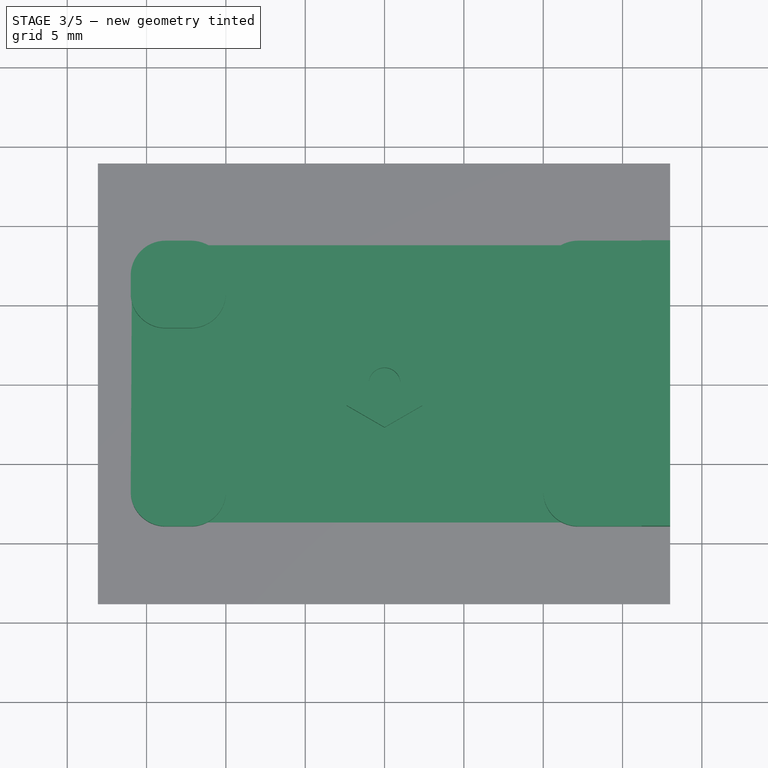
[diagram: stage 3 of 5 — top view after this stage's code; geometry added in this stage tinted green]
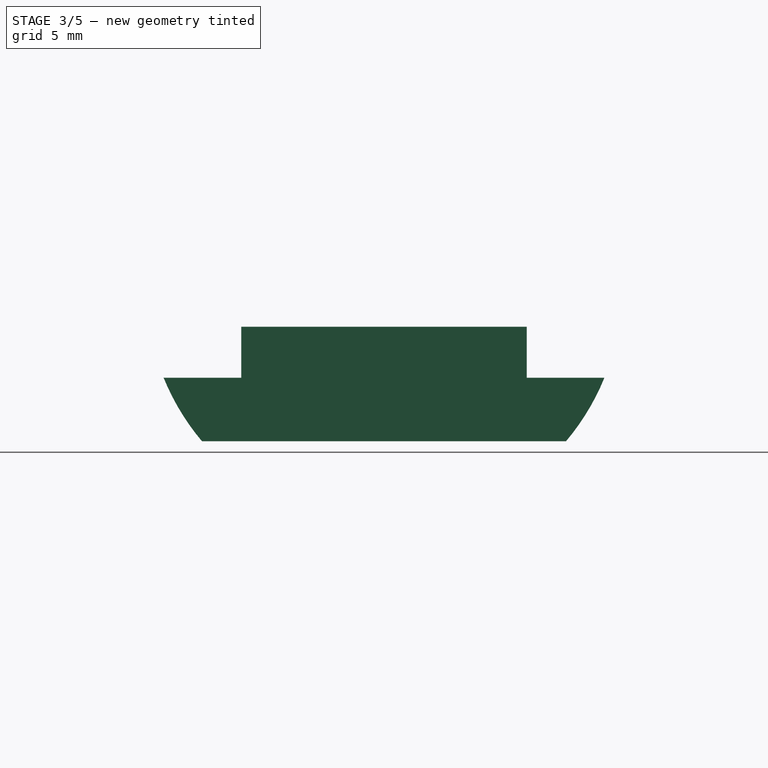
[diagram: stage 3 of 5 — right view after this stage's code; geometry added in this stage tinted green]
FEATURE [PartDesign::SubShapeBinder] Binder002
  BindCopyOnChange = 0
  BindMode = 0
  ClaimChildren = false
  Context = -> Part006 [Body.Binder002.]
  Fuse = false
  MakeFace = true
  OffsetFill = false
  OffsetIntersection = false
  OffsetJoinType = 0
  OffsetOpenResult = false
  PartialLoad = false
  Relative = true
  Support = -> [wingbeat_detector_1[Part007.Part__Feature030.Face4,Part007.Part__Feature030.Face6,Part007.Part__Feature030.Face23,Part007.Part__Feature030.Face47,Part007.Part__Feature030.Face30,Part007.Part__Feature030.Face5,SOIC_16W_7_5x10_3mm_P1_27mm001.Part__Feature022.Face75,VSON_8_3x3mm_P0_65mm.Part__Feature018.Face36]]
  _Version = 2
FEATURE [PartDesign::SubShapeBinder] Binder003
  BindCopyOnChange = 0
  BindMode = 0
  ClaimChildren = false
  Context = -> Part006 [Body.Binder003.]
  Fuse = false
  MakeFace = true
  OffsetFill = false
  OffsetIntersection = false
  OffsetJoinType = 0
  OffsetOpenResult = false
  PartialLoad = false
  Relative = true
  Support = -> [Part008[Body001.Pocket010.Face7,Body001.Pocket010.Face22,Body001.Pocket010.Face23,Body001.Pocket010.Face24,Body001.Pocket010.Face25,Body001.Pocket010.Face26,Body001.Pocket010.Face32,Body001.Pocket010.Face42]]
  _Version = 2
FEATURE [PartDesign::SubShapeBinder] Binder004
  BindCopyOnChange = 0
  BindMode = 0
  ClaimChildren = false
  Context = -> Part006 [Body.Binder004.]
  Fuse = false
  MakeFace = true
  OffsetFill = false
  OffsetIntersection = false
  OffsetJoinType = 0
  OffsetOpenResult = false
  PartialLoad = false
  Relative = true
  Support = -> [Part[Part__Feature031.Face14,Part__Feature031.Vertex414,Part__Feature031.Face86,Part__Feature031.Face67,Part__Feature031.Face2,Part__Feature031.Face1,Part__Feature031.Face89,Part__Feature031.Face190]]
  _Version = 2
FEATURE [PartDesign::Plane] DatumPlane005
  Length = 60
  MapMode = 5
  Placement = pos=(-18.0714,-4.5e-15,0) rot=(0.57735,-0.57735,-0.57735;2.0944rad)
  ResizeMode = 0
  Support = -> [Binder003]
  Width = 60
FEATURE [Sketcher::SketchObject] Sketch024
  ExternalGeometry = -> [Binder003]
  FullyConstrained = true
  MapMode = 5
  Placement = pos=(-18.0714,-4.5e-15,0) rot=(0.57735,-0.57735,-0.57735;2.0944rad)
  Support = -> [DatumPlane005]
  sketch-geometry (4):
    g0: LineSegment StartX=-13.8907 StartY=-1.61111 StartZ=0 EndX=13.8907 EndY=-1.61111 EndZ=0
    g1: ArcOfCircle CenterX=-1.2e-14 CenterY=4.05 CenterZ=0 NormalX=0 NormalY=0 NormalZ=1 AngleXU=0 Radius=15 StartAngle=3.52859 EndAngle=3.8414
    g2: LineSegment StartX=-11.4745 StartY=-5.61111 StartZ=0 EndX=11.4745 EndY=-5.61111 EndZ=0
    g3: ArcOfCircle CenterX=-1.2e-14 CenterY=4.05 CenterZ=0 NormalX=0 NormalY=0 NormalZ=1 AngleXU=0 Radius=15 StartAngle=5.58337 EndAngle=5.89619
  constraints (10):
    c: Coincident(g0,g-3)
    c: Coincident(g0,g-4)
    c: Coincident(g1,g-4)
    c: Coincident(g1,g0)
    c: Horizontal(g2)
    c: Coincident(g1,g2)
    c: Coincident(g3,g2)
    c: Coincident(g1,g3)
    c: DistanceY(g2,g0) = 4
    c: Coincident(g3,g0)
FEATURE [PartDesign::Plane] DatumPlane006
  Length = 60
  MapMode = 5
  Placement = pos=(18,0,2e-15) rot=(0.57735,0.57735,0.57735;2.0944rad)
  ResizeMode = 0
  Support = -> [Binder003]
  Width = 60
FEATURE [PartDesign::Pad] Pad008  label="MainBody001"
  Direction = (-1,0,0)
  Length = 10
  Length2 = 10
  Placement = pos=(-18.0714,-5e-15,0) rot=(0.57735,-0.57735,-0.57735;2.0944rad)
  Profile = -> Sketch024
  ReferenceAxis = -> Sketch024 [N_Axis]
  Type = 3
  UpToFace = -> DatumPlane006 [Plane]
FEATURE [Sketcher::SketchObject] Sketch025
  ExternalGeometry = -> [Pad008,Binder002,Binder003]
  FullyConstrained = true
  MapMode = 5
  Placement = pos=(-18.0714,-5.2e-15,-1.61111) rot=(0,0,1;1.5708rad)
  Support = -> [Pad008]
  sketch-geometry (5):
    g0: LineSegment StartX=-9 StartY=-34.2714 StartZ=0 EndX=-9 EndY=-36.0714 EndZ=0
    g1: LineSegment StartX=-9 StartY=-36.0714 StartZ=0 EndX=9 EndY=-36.0714 EndZ=0
    g2: LineSegment StartX=9 StartY=-36.0714 StartZ=0 EndX=9 EndY=-34.2714 EndZ=0
    g3: LineSegment StartX=9 StartY=-34.2714 StartZ=0 EndX=-9 EndY=-34.2714 EndZ=0
    g4: GeomPoint X=-7e-16 Y=-35.1714 Z=0
  constraints (12):
    c: Coincident(g0,g1)
    c: Coincident(g1,g2)
    c: Coincident(g2,g3)
    c: Coincident(g3,g0)
    c: Horizontal(g1)
    c: Vertical(g0)
    c: Vertical(g2)
    c: Symmetric(g1,g0,g4)
    c: Symmetric(g0,g2,g-2)
    c: DistanceY(g2,g-4) = 0.2
    c: PointOnObject(g1,g-3)
    c: DistanceX(g1,g-6) = 0.2
FEATURE [PartDesign::Plane] DatumPlane007
  Length = 60
  MapMode = 5
  Placement = pos=(0,0,1.6) rot=(1,0,0;3.14159rad)
  ResizeMode = 0
  Support = -> [Binder003]
  Width = 60
FEATURE [PartDesign::Pad] Pad009  label="TailFin"
  BaseFeature = -> Pad008
  Direction = (1e-16,0,1)
  Length = 10
  Length2 = 10
  Placement = pos=(-18.0714,-5e-15,0) rot=(0.57735,-0.57735,-0.57735;2.0944rad)
  Profile = -> Sketch025
  ReferenceAxis = -> Sketch025 [N_Axis]
  Type = 3
  UpToFace = -> DatumPlane007 [Plane]
FEATURE [PartDesign::Plane] DatumPlane008
  Length = 60
  MapMode = 5
  Placement = pos=(0,0,0) rot=(1,0,0;3.14159rad)
  ResizeMode = 0
  Support = -> [Binder002]
  Width = 60
FEATURE [Sketcher::SketchObject] Sketch026
  ExternalGeometry = -> [Binder003,Pad009]
  FullyConstrained = true
  MapMode = 5
  Placement = pos=(-18.0714,-5.2e-15,-1.61111) rot=(0,0,1;1.5708rad)
  Support = -> [Pad009]
  sketch-geometry (28):
    g0: ArcOfCircle CenterX=-6.8 CenterY=-4.27144 CenterZ=0 NormalX=0 NormalY=0 NormalZ=1 AngleXU=0 Radius=2.2 StartAngle=1.5708 EndAngle=3.14159
    g1: LineSegment StartX=-6.8 StartY=-2.07144 StartZ=0 EndX=-5.7 EndY=-2.07144 EndZ=0
    g2: ArcOfCircle CenterX=-5.7 CenterY=-4.27144 CenterZ=0 NormalX=0 NormalY=0 NormalZ=1 AngleXU=0 Radius=2.2 StartAngle=1e-16 EndAngle=1.5708
    g3: LineSegment StartX=-3.5 StartY=-4.27144 StartZ=0 EndX=-3.5 EndY=-5.87144 EndZ=0
    g4: ArcOfCircle CenterX=-5.7 CenterY=-5.87144 CenterZ=0 NormalX=0 NormalY=0 NormalZ=1 AngleXU=0 Radius=2.2 StartAngle=4.71239 EndAngle=6.28319
    g5: LineSegment StartX=-5.7 StartY=-8.07144 StartZ=0 EndX=-6.8 EndY=-8.07144 EndZ=0
    g6: ArcOfCircle CenterX=-6.8 CenterY=-5.87144 CenterZ=0 NormalX=0 NormalY=0 NormalZ=1 AngleXU=0 Radius=2.2 StartAngle=3.14159 EndAngle=4.71239
    g7: LineSegment StartX=-9 StartY=-5.87144 StartZ=0 EndX=-9 EndY=-4.27144 EndZ=0
    g8: GeomPoint X=-9 Y=-2.07144 Z=0
    g9: GeomPoint X=-3.5 Y=-8.07144 Z=0
    g10: ArcOfCircle CenterX=5.7 CenterY=-4.27144 CenterZ=0 NormalX=0 NormalY=0 NormalZ=1 AngleXU=0 Radius=2.2 StartAngle=1.5708 EndAngle=3.14159
    g11: LineSegment StartX=5.7 StartY=-2.07144 StartZ=0 EndX=6.8 EndY=-2.07144 EndZ=0
    g12: ArcOfCircle CenterX=6.8 CenterY=-4.27144 CenterZ=0 NormalX=0 NormalY=0 NormalZ=1 AngleXU=0 Radius=2.2 StartAngle=0 EndAngle=1.5708
    g13: LineSegment StartX=9 StartY=-4.27144 StartZ=0 EndX=9 EndY=-5.87144 EndZ=0
    g14: ArcOfCircle CenterX=6.8 CenterY=-5.87144 CenterZ=0 NormalX=0 NormalY=0 NormalZ=1 AngleXU=0 Radius=2.2 StartAngle=4.71239 EndAngle=6.28319
    g15: LineSegment StartX=6.8 StartY=-8.07144 StartZ=0 EndX=5.7 EndY=-8.07144 EndZ=0
    g16: ArcOfCircle CenterX=5.7 CenterY=-5.87144 CenterZ=0 NormalX=0 NormalY=0 NormalZ=1 AngleXU=0 Radius=2.2 StartAngle=3.14159 EndAngle=4.71239
    g17: LineSegment StartX=3.5 StartY=-5.87144 StartZ=0 EndX=3.5 EndY=-4.27144 EndZ=0
    g18: GeomPoint X=3.5 Y=-2.07144 Z=0
    g19: GeomPoint X=9 Y=-8.07144 Z=0
    g20: ArcOfCircle CenterX=-6.8 CenterY=-30.2714 CenterZ=0 NormalX=0 NormalY=0 NormalZ=1 AngleXU=0 Radius=2.2 StartAngle=1.5708 EndAngle=3.14159
    g21: LineSegment StartX=-6.8 StartY=-28.0714 StartZ=0 EndX=6.8 EndY=-28.0714 EndZ=0
    g22: ArcOfCircle CenterX=6.8 CenterY=-30.2714 CenterZ=0 NormalX=0 NormalY=0 NormalZ=1 AngleXU=0 Radius=2.2 StartAngle=1e-16 EndAngle=1.5708
    g23: LineSegment StartX=9 StartY=-30.2714 StartZ=0 EndX=9 EndY=-34.2714 EndZ=0
    g24: LineSegment StartX=9 StartY=-34.2714 StartZ=0 EndX=-9 EndY=-34.2714 EndZ=0
    g25: LineSegment StartX=-9 StartY=-34.2714 StartZ=0 EndX=-9 EndY=-30.2714 EndZ=0
    g26: GeomPoint X=-9 Y=-28.0714 Z=0
    g27: GeomPoint X=9 Y=-34.2714 Z=0
  constraints (65):
    c: Tangent(g0,g1) = 1.5708
    c: Tangent(g1,g2) = 1.5708
    c: Tangent(g2,g3) = 1.5708
    c: Tangent(g3,g4) = 1.5708
    c: Tangent(g4,g5) = 1.5708
    c: Tangent(g5,g6) = 1.5708
    c: Tangent(g6,g7) = 1.5708
    c: Tangent(g7,g0) = 1.5708
    c: Horizontal(g1)
    c: Horizontal(g5)
    c: Vertical(g3)
    c: Vertical(g7)
    c: Equal(g0,g2)
    c: Equal(g2,g4)
    c: PointOnObject(g8,g1)
    c: PointOnObject(g8,g7)
    c: PointOnObject(g9,g3)
    c: PointOnObject(g9,g5)
    c: Tangent(g10,g11) = 1.5708
    c: Tangent(g11,g12) = 1.5708
    c: Tangent(g12,g13) = 1.5708
    c: Tangent(g13,g14) = 1.5708
    c: Tangent(g14,g15) = 1.5708
    c: Tangent(g15,g16) = 1.5708
    c: Tangent(g16,g17) = 1.5708
    c: Tangent(g17,g10) = 1.5708
    c: Horizontal(g11)
    c: Horizontal(g15)
    c: Vertical(g13)
    c: Vertical(g17)
    c: Equal(g10,g12)
    c: Equal(g12,g14)
    c: PointOnObject(g18,g11)
    c: PointOnObject(g18,g17)
    c: PointOnObject(g19,g13)
    c: PointOnObject(g19,g15)
    c: Tangent(g20,g21) = 1.5708
    c: Tangent(g21,g22) = 1.5708
    c: Tangent(g22,g23) = 1.5708
    c: Tangent(g25,g20) = 1.5708
    c: Horizontal(g21)
    c: Vertical(g23)
    c: Vertical(g25)
    c: Equal(g20,g22)
    c: PointOnObject(g26,g21)
    c: PointOnObject(g26,g25)
    c: PointOnObject(g27,g23)
    c: PointOnObject(g27,g24)
    c: Coincident(g25,g24)
    c: Coincident(g24,g23)
    c: Coincident(g24,g-6)
    c: Coincident(g23,g-6)
    c: Equal(g22,g0)
    c: Equal(g0,g6)
    c: Equal(g2,g10)
    c: Equal(g10,g16)
    c: Equal(g12,g-13)
    c: DistanceY(g-5,g21) = 1
    c: Vertical(g20,g6)
    c: Vertical(g13,g22)
    c: Horizontal(g1,g10)
    c: DistanceY(g0,g-11) = 0.2
    c: Symmetric(g3,g16,g-2)
    c: DistanceX(g3,g16) = 7
    c: DistanceY(g5,g0) = 6
FEATURE [PartDesign::Pad] Pad010  label="BoardSupport"
  BaseFeature = -> Pad009
  Direction = (2e-16,1e-16,1)
  Length = 10
  Length2 = 10
  Placement = pos=(-18.0714,-5e-15,0) rot=(0.57735,-0.57735,-0.57735;2.0944rad)
  Profile = -> Sketch026
  ReferenceAxis = -> Sketch026 [N_Axis]
  Type = 3
  UpToFace = -> DatumPlane008
FEATURE [Sketcher::SketchObject] Sketch029
  FullyConstrained = true
  MapMode = 5
  Support = -> [XY_Plane048]
  sketch-geometry (8):
    g0: LineSegment StartX=2.3876 StartY=-1.37848 StartZ=0 EndX=2.3876 EndY=1.37848 EndZ=0
    g1: LineSegment StartX=2.3876 StartY=1.37848 StartZ=0 EndX=-4e-16 EndY=2.75696 EndZ=0
    g2: LineSegment StartX=-4e-16 StartY=2.75696 StartZ=0 EndX=-2.3876 EndY=1.37848 EndZ=0
    g3: LineSegment StartX=-2.3876 StartY=1.37848 StartZ=0 EndX=-2.3876 EndY=-1.37848 EndZ=0
    g4: LineSegment StartX=-2.3876 StartY=-1.37848 StartZ=0 EndX=-4e-16 EndY=-2.75696 EndZ=0
    g5: LineSegment StartX=-4e-16 StartY=-2.75696 StartZ=0 EndX=2.3876 EndY=-1.37848 EndZ=0
    g6: Circle CenterX=0 CenterY=0 CenterZ=0 NormalX=0 NormalY=0 NormalZ=1 AngleXU=0 Radius=2.75696
    g7: Circle CenterX=0 CenterY=0 CenterZ=0 NormalX=0 NormalY=0 NormalZ=1 AngleXU=0 Radius=1
  constraints (18):
    c: Coincident(g0,g1)
    c: Coincident(g1,g2)
    c: Coincident(g2,g3)
    c: Coincident(g3,g4)
    c: Coincident(g4,g5)
    c: Coincident(g5,g0)
    c: Equal(g0, g1-g5) x5
    c: PointOnObject(g0,g6)
    c: PointOnObject(g1,g6)
    c: PointOnObject(g2,g6)
    c: PointOnObject(g3,g6)
    c: PointOnObject(g4,g6)
    c: PointOnObject(g5,g6)
    c: Coincident(g6,g-1)
    c: Vertical(g0)
    c: DistanceX(g2,g0) = 4.7752
    c: Coincident(g7,g6)
    c: Diameter(g7) = 2
FEATURE [PartDesign::Pad] Pad011
  Direction = (0,0,1)
  Length = 1.6764
  Length2 = 10
  Profile = -> Sketch029
  ReferenceAxis = -> Sketch029 [N_Axis]
  Reversed = true
  Type = 0
FEATURE [PartDesign::Body] Body006  label="nut001"
  Group = -> [Sketch029,Pad011]
  Origin = -> Origin048
  Placement = pos=(-14,7,-2.75) rot=(0,0,1;0rad)
  Tip = -> Pad011
FEATURE [Sketcher::SketchObject] Sketch030
  FullyConstrained = true
  MapMode = 5
  Support = -> [XY_Plane049]
  sketch-geometry (8):
    g0: LineSegment StartX=2.3876 StartY=-1.37848 StartZ=0 EndX=2.3876 EndY=1.37848 EndZ=0
    g1: LineSegment StartX=2.3876 StartY=1.37848 StartZ=0 EndX=-4e-16 EndY=2.75696 EndZ=0
    g2: LineSegment StartX=-4e-16 StartY=2.75696 StartZ=0 EndX=-2.3876 EndY=1.37848 EndZ=0
    g3: LineSegment StartX=-2.3876 StartY=1.37848 StartZ=0 EndX=-2.3876 EndY=-1.37848 EndZ=0
    g4: LineSegment StartX=-2.3876 StartY=-1.37848 StartZ=0 EndX=-4e-16 EndY=-2.75696 EndZ=0
    g5: LineSegment StartX=-4e-16 StartY=-2.75696 StartZ=0 EndX=2.3876 EndY=-1.37848 EndZ=0
    g6: Circle CenterX=0 CenterY=0 CenterZ=0 NormalX=0 NormalY=0 NormalZ=1 AngleXU=0 Radius=2.75696
    g7: Circle CenterX=0 CenterY=0 CenterZ=0 NormalX=0 NormalY=0 NormalZ=1 AngleXU=0 Radius=1
  constraints (18):
    c: Coincident(g0,g1)
    c: Coincident(g1,g2)
    c: Coincident(g2,g3)
    c: Coincident(g3,g4)
    c: Coincident(g4,g5)
    c: Coincident(g5,g0)
    c: Equal(g0, g1-g5) x5
    c: PointOnObject(g0,g6)
    c: PointOnObject(g1,g6)
    c: PointOnObject(g2,g6)
    c: PointOnObject(g3,g6)
    c: PointOnObject(g4,g6)
    c: PointOnObject(g5,g6)
    c: Coincident(g6,g-1)
    c: Vertical(g0)
    c: DistanceX(g2,g0) = 4.7752
    c: Coincident(g7,g6)
    c: Diameter(g7) = 2
FEATURE [PartDesign::Pad] Pad012
  Direction = (0,0,1)
  Length = 1.6764
  Length2 = 10
  Profile = -> Sketch030
  ReferenceAxis = -> Sketch030 [N_Axis]
  Reversed = true
  Type = 0
FEATURE [PartDesign::Body] Body007  label="nut002"
  Group = -> [Sketch030,Pad012]
  Origin = -> Origin049
  Placement = pos=(14,7,-2.75) rot=(0,0,1;0rad)
  Tip = -> Pad012
FEATURE [Sketcher::SketchObject] Sketch031
  FullyConstrained = true
  MapMode = 5
  Support = -> [XY_Plane050]
  sketch-geometry (8):
    g0: LineSegment StartX=2.3876 StartY=-1.37848 StartZ=0 EndX=2.3876 EndY=1.37848 EndZ=0
    g1: LineSegment StartX=2.3876 StartY=1.37848 StartZ=0 EndX=-4e-16 EndY=2.75696 EndZ=0
    g2: LineSegment StartX=-4e-16 StartY=2.75696 StartZ=0 EndX=-2.3876 EndY=1.37848 EndZ=0
    g3: LineSegment StartX=-2.3876 StartY=1.37848 StartZ=0 EndX=-2.3876 EndY=-1.37848 EndZ=0
    g4: LineSegment StartX=-2.3876 StartY=-1.37848 StartZ=0 EndX=-4e-16 EndY=-2.75696 EndZ=0
    g5: LineSegment StartX=-4e-16 StartY=-2.75696 StartZ=0 EndX=2.3876 EndY=-1.37848 EndZ=0
    g6: Circle CenterX=0 CenterY=0 CenterZ=0 NormalX=0 NormalY=0 NormalZ=1 AngleXU=0 Radius=2.75696
    g7: Circle CenterX=0 CenterY=0 CenterZ=0 NormalX=0 NormalY=0 NormalZ=1 AngleXU=0 Radius=1
  constraints (18):
    c: Coincident(g0,g1)
    c: Coincident(g1,g2)
    c: Coincident(g2,g3)
    c: Coincident(g3,g4)
    c: Coincident(g4,g5)
    c: Coincident(g5,g0)
    c: Equal(g0, g1-g5) x5
    c: PointOnObject(g0,g6)
    c: PointOnObject(g1,g6)
    c: PointOnObject(g2,g6)
    c: PointOnObject(g3,g6)
    c: PointOnObject(g4,g6)
    c: PointOnObject(g5,g6)
    c: Coincident(g6,g-1)
    c: Vertical(g0)
    c: DistanceX(g2,g0) = 4.7752
    c: Coincident(g7,g6)
    c: Diameter(g7) = 2
FEATURE [PartDesign::Pad] Pad013
  Direction = (0,0,1)
  Length = 1.6764
  Length2 = 10
  Profile = -> Sketch031
  ReferenceAxis = -> Sketch031 [N_Axis]
  Reversed = true
  Type = 0
FEATURE [PartDesign::Body] Body008  label="nut003"
  Group = -> [Sketch031,Pad013]
  Origin = -> Origin050
  Placement = pos=(-14,-7,-2.75) rot=(0,0,1;0rad)
  Tip = -> Pad013
FEATURE [Sketcher::SketchObject] Sketch032
  FullyConstrained = true
  MapMode = 5
  Support = -> [XY_Plane051]
  sketch-geometry (8):
    g0: LineSegment StartX=2.3876 StartY=-1.37848 StartZ=0 EndX=2.3876 EndY=1.37848 EndZ=0
    g1: LineSegment StartX=2.3876 StartY=1.37848 StartZ=0 EndX=-4e-16 EndY=2.75696 EndZ=0
    g2: LineSegment StartX=-4e-16 StartY=2.75696 StartZ=0 EndX=-2.3876 EndY=1.37848 EndZ=0
    g3: LineSegment StartX=-2.3876 StartY=1.37848 StartZ=0 EndX=-2.3876 EndY=-1.37848 EndZ=0
    g4: LineSegment StartX=-2.3876 StartY=-1.37848 StartZ=0 EndX=-4e-16 EndY=-2.75696 EndZ=0
    g5: LineSegment StartX=-4e-16 StartY=-2.75696 StartZ=0 EndX=2.3876 EndY=-1.37848 EndZ=0
    g6: Circle CenterX=0 CenterY=0 CenterZ=0 NormalX=0 NormalY=0 NormalZ=1 AngleXU=0 Radius=2.75696
    g7: Circle CenterX=0 CenterY=0 CenterZ=0 NormalX=0 NormalY=0 NormalZ=1 AngleXU=0 Radius=1
  constraints (18):
    c: Coincident(g0,g1)
    c: Coincident(g1,g2)
    c: Coincident(g2,g3)
    c: Coincident(g3,g4)
    c: Coincident(g4,g5)
    c: Coincident(g5,g0)
    c: Equal(g0, g1-g5) x5
    c: PointOnObject(g0,g6)
    c: PointOnObject(g1,g6)
    c: PointOnObject(g2,g6)
    c: PointOnObject(g3,g6)
    c: PointOnObject(g4,g6)
    c: PointOnObject(g5,g6)
    c: Coincident(g6,g-1)
    c: Vertical(g0)
    c: DistanceX(g2,g0) = 4.7752
    c: Coincident(g7,g6)
    c: Diameter(g7) = 2
FEATURE [PartDesign::Pad] Pad014
  Direction = (0,0,1)
  Length = 1.6764
  Length2 = 10
  Profile = -> Sketch032
  ReferenceAxis = -> Sketch032 [N_Axis]
  Reversed = true
  Type = 0
FEATURE [PartDesign::Pad] Pad019  label="VersionText"
  BaseFeature = -> Pad018
  Direction = (-2e-16,-1e-16,1)
  Length = 0.5
  Length2 = 10
  Placement = pos=(-18.0714,0,0) rot=(0.57735,0.57735,0.57735;2.0944rad)
  Profile = -> ShapeString003
  ReferenceAxis = -> ShapeString003 [N_Axis]
  Type = 0
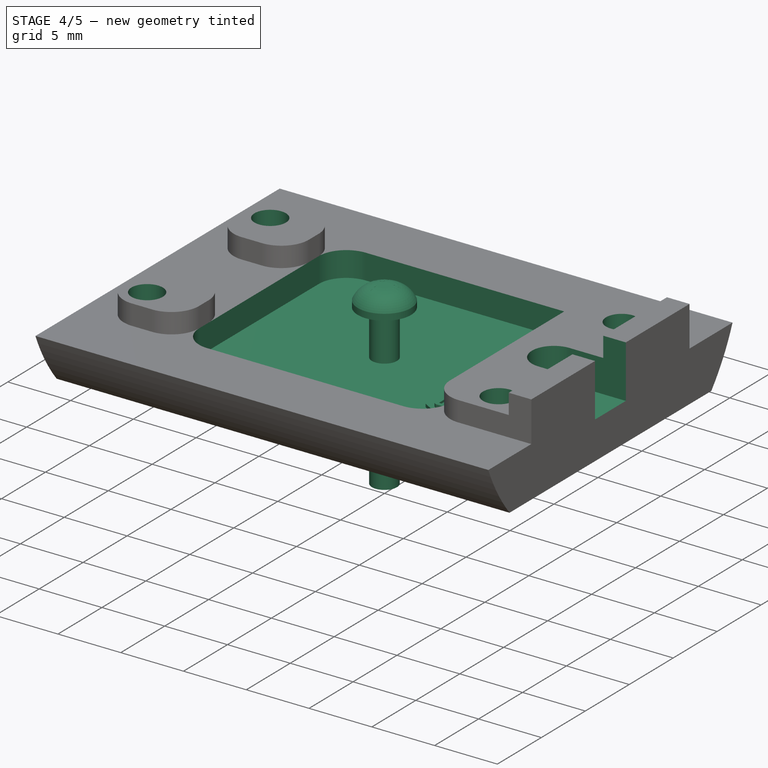
[diagram: stage 4 of 5 — iso view after this stage's code; geometry added in this stage tinted green]
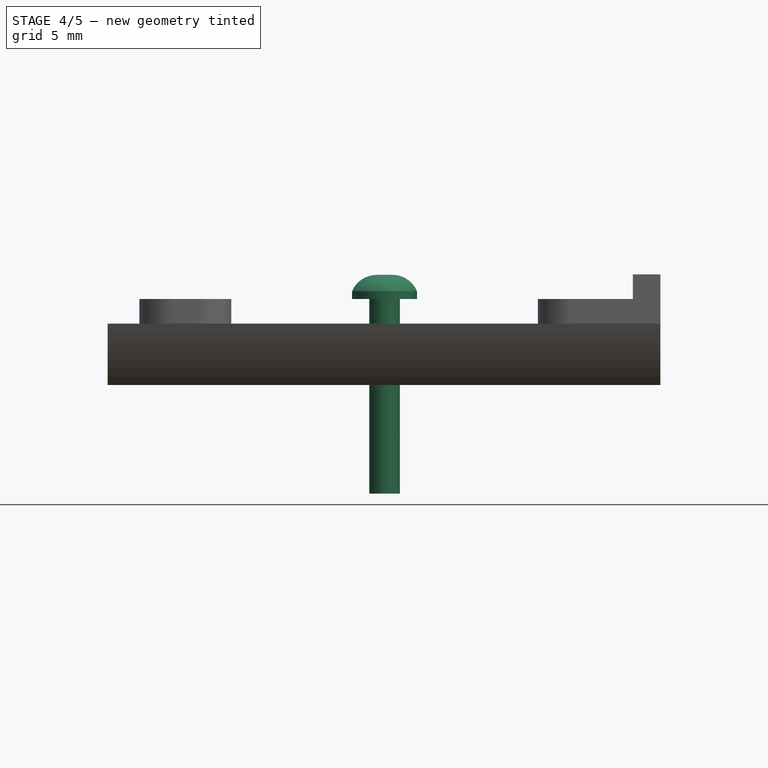
[diagram: stage 4 of 5 — front view after this stage's code; geometry added in this stage tinted green]
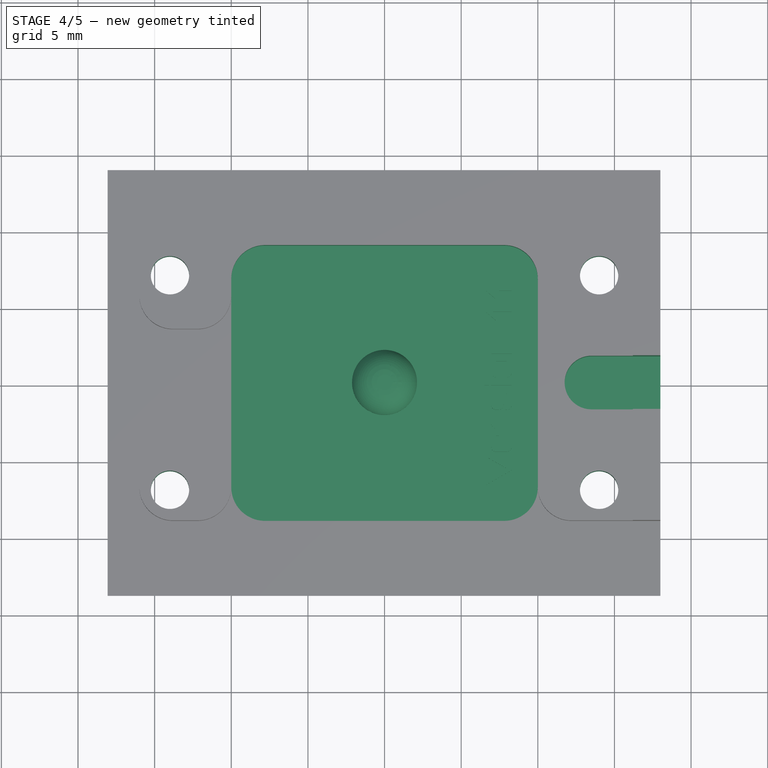
[diagram: stage 4 of 5 — top view after this stage's code; geometry added in this stage tinted green]
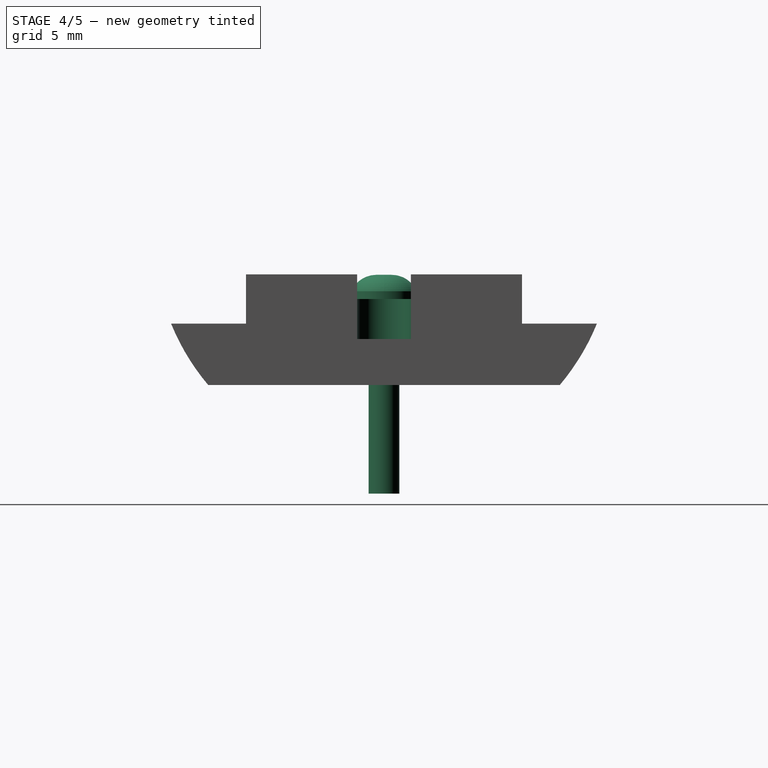
[diagram: stage 4 of 5 — right view after this stage's code; geometry added in this stage tinted green]
FEATURE [PartDesign::Body] Body003  label="screw002"
  Group = -> [Sketch011,Revolution001,Sketch012,Pocket004,Sketch013,Pad005]
  Origin = -> Origin044
  Placement = pos=(14,7,7.75) rot=(0,0,1;0rad)
  Tip = -> Pad005
FEATURE [Sketcher::SketchObject] Sketch014
  FullyConstrained = true
  MapMode = 5
  Placement = pos=(0,0,0) rot=(1,0,0;1.5708rad)
  Support = -> [XZ_Plane045]
  sketch-geometry (5):
    g0: LineSegment StartX=0 StartY=0 StartZ=0 EndX=0 EndY=1.5748 EndZ=0
    g1: LineSegment StartX=0 StartY=1.5748 StartZ=0 EndX=0.5 EndY=1.5748 EndZ=0
    g2: ArcOfCircle CenterX=0.5 CenterY=-0.184835 CenterZ=0 NormalX=0 NormalY=0 NormalZ=1 AngleXU=0 Radius=1.75964 StartAngle=0.399754 EndAngle=1.5708
    g3: LineSegment StartX=2.1209 StartY=0.5 StartZ=0 EndX=2.1209 EndY=0 EndZ=0
    g4: LineSegment StartX=2.1209 StartY=0 StartZ=0 EndX=0 EndY=0 EndZ=0
  constraints (14):
    c: Coincident(g-1,g0)
    c: PointOnObject(g0,g-2)
    c: Coincident(g0,g1)
    c: Horizontal(g1)
    c: Tangent(g1,g2) = 1.5708
    c: Coincident(g2,g3)
    c: PointOnObject(g3,g-1)
    c: Vertical(g3)
    c: Coincident(g3,g4)
    c: Coincident(g4,g0)
    c: DistanceY(g0,g0) = 1.5748
    c: DistanceX(g0,g3) = 2.1209
    c: DistanceY(g3,g2) = 0.5
    c: DistanceX(g0,g1) = 0.5
FEATURE [PartDesign::Revolution] Revolution002
  Angle = 360
  Axis = (0,-2e-16,1)
  Base = (0,0,0)
  Placement = pos=(0,0,0) rot=(1,0,0;1.5708rad)
  Profile = -> Sketch014
  ReferenceAxis = -> Sketch014 [V_Axis]
  Reversed = true
FEATURE [PartDesign::Body] Body004  label="screw003"
  Group = -> [Sketch014,Revolution002,Sketch015,Pocket005,Sketch016,Pad006]
  Origin = -> Origin045
  Placement = pos=(-14,-7,7.75) rot=(0,0,1;0rad)
  Tip = -> Pad006
FEATURE [Sketcher::SketchObject] Sketch017
  FullyConstrained = true
  MapMode = 5
  Placement = pos=(0,0,0) rot=(1,0,0;1.5708rad)
  Support = -> [XZ_Plane046]
  sketch-geometry (5):
    g0: LineSegment StartX=0 StartY=0 StartZ=0 EndX=0 EndY=1.5748 EndZ=0
    g1: LineSegment StartX=0 StartY=1.5748 StartZ=0 EndX=0.5 EndY=1.5748 EndZ=0
    g2: ArcOfCircle CenterX=0.5 CenterY=-0.184835 CenterZ=0 NormalX=0 NormalY=0 NormalZ=1 AngleXU=0 Radius=1.75964 StartAngle=0.399754 EndAngle=1.5708
    g3: LineSegment StartX=2.1209 StartY=0.5 StartZ=0 EndX=2.1209 EndY=0 EndZ=0
    g4: LineSegment StartX=2.1209 StartY=0 StartZ=0 EndX=0 EndY=0 EndZ=0
  constraints (14):
    c: Coincident(g-1,g0)
    c: PointOnObject(g0,g-2)
    c: Coincident(g0,g1)
    c: Horizontal(g1)
    c: Tangent(g1,g2) = 1.5708
    c: Coincident(g2,g3)
    c: PointOnObject(g3,g-1)
    c: Vertical(g3)
    c: Coincident(g3,g4)
    c: Coincident(g4,g0)
    c: DistanceY(g0,g0) = 1.5748
    c: DistanceX(g0,g3) = 2.1209
    c: DistanceY(g3,g2) = 0.5
    c: DistanceX(g0,g1) = 0.5
FEATURE [PartDesign::Revolution] Revolution003
  Angle = 360
  Axis = (0,-2e-16,1)
  Base = (0,0,0)
  Placement = pos=(0,0,0) rot=(1,0,0;1.5708rad)
  Profile = -> Sketch017
  ReferenceAxis = -> Sketch017 [V_Axis]
  Reversed = true
FEATURE [Sketcher::SketchObject] Sketch018
  FullyConstrained = true
  MapMode = 5
  Placement = pos=(0,0,1.5748) rot=(0,0,1;3.14159rad)
  Support = -> [Revolution003]
  sketch-geometry (12):
    g0: ArcOfCircle CenterX=0 CenterY=1 CenterZ=0 NormalX=0 NormalY=0 NormalZ=1 AngleXU=0 Radius=0.375 StartAngle=4.11e-14 EndAngle=3.14159
    g1: ArcOfCircle CenterX=0 CenterY=-1 CenterZ=0 NormalX=0 NormalY=0 NormalZ=1 AngleXU=0 Radius=0.375 StartAngle=3.14159 EndAngle=6.28319
    g2: LineSegment StartX=-0.375 StartY=1 StartZ=0 EndX=-0.375 EndY=0.375 EndZ=0
    g3: LineSegment StartX=0.375 StartY=-1 StartZ=0 EndX=0.375 EndY=-0.375 EndZ=0
    g4: ArcOfCircle CenterX=-1 CenterY=0 CenterZ=0 NormalX=0 NormalY=0 NormalZ=1 AngleXU=0 Radius=0.375 StartAngle=1.5708 EndAngle=4.71239
    g5: ArcOfCircle CenterX=1 CenterY=0 CenterZ=0 NormalX=0 NormalY=0 NormalZ=1 AngleXU=0 Radius=0.375 StartAngle=4.71239 EndAngle=7.85398
    g6: LineSegment StartX=-1 StartY=-0.375 StartZ=0 EndX=-0.375 EndY=-0.375 EndZ=0
    g7: LineSegment StartX=1 StartY=0.375 StartZ=0 EndX=0.375 EndY=0.375 EndZ=0
    g8: LineSegment StartX=-0.375 StartY=-0.375 StartZ=0 EndX=-0.375 EndY=-1 EndZ=0
    g9: LineSegment StartX=-0.375 StartY=0.375 StartZ=0 EndX=-1 EndY=0.375 EndZ=0
    g10: LineSegment StartX=0.375 StartY=0.375 StartZ=0 EndX=0.375 EndY=1 EndZ=0
    g11: LineSegment StartX=0.375 StartY=-0.375 StartZ=0 EndX=1 EndY=-0.375 EndZ=0
  constraints (34):
    c: Tangent(g0,g2) = -1.5708
    c: Coincident(g8,g1) = -1.5708
    c: Tangent(g1,g3) = -1.5708
    c: Coincident(g10,g0) = -1.5708
    c: Equal(g0,g1)
    c: PointOnObject(g0,g-2)
    c: Symmetric(g1,g0,g-1)
    c: DistanceY(g1,g0) = 2
    c: DistanceX(g0,g0) = 0.75
    c: Tangent(g4,g6) = -1.5708
    c: Coincident(g11,g5) = -1.5708
    c: Tangent(g5,g7) = -1.5708
    c: Coincident(g9,g4) = -1.5708
    c: Equal(g4,g5)
    c: PointOnObject(g4,g-1)
    c: Symmetric(g4,g5,g-2)
    c: DistanceY(g5,g5) = 0.75
    c: DistanceX(g4,g5) = 2
    c: Coincident(g9,g2)
    c: Coincident(g10,g7)
    c: Coincident(g6,g8)
    c: Coincident(g11,g3)
    c: Vertical(g10)
    c: Vertical(g2)
    c: Vertical(g8)
    c: Vertical(g3)
    c: Horizontal(g9)
    c: Horizontal(g6)
    c: Horizontal(g11)
    c: Horizontal(g7)
    c: Horizontal(g0,g0)
    c: Horizontal(g1,g1)
    c: Vertical(g4,g4)
    c: Vertical(g5,g5)
FEATURE [PartDesign::Pocket] Pocket006
  BaseFeature = -> Revolution003
  Direction = (0,2e-16,-1)
  Length = 1
  Length2 = 5
  Offset = 0.25
  Placement = pos=(0,0,0) rot=(1,0,0;1.5708rad)
  Profile = -> Sketch018
  ReferenceAxis = -> Sketch018 [N_Axis]
  Type = 0
FEATURE [Sketcher::SketchObject] Sketch019
  FullyConstrained = true
  MapMode = 5
  Placement = pos=(0,0,0) rot=(1,0,0;3.14159rad)
  Support = -> [Pocket006]
  sketch-geometry (1):
    g0: Circle CenterX=0 CenterY=0 CenterZ=0 NormalX=0 NormalY=0 NormalZ=1 AngleXU=0 Radius=1
  constraints (2):
    c: Coincident(g0,g-1)
    c: Diameter(g0) = 2
FEATURE [PartDesign::Pad] Pad007
  BaseFeature = -> Pocket006
  Direction = (0,2e-16,-1)
  Length = 12.7
  Length2 = 10
  Placement = pos=(0,0,0) rot=(1,0,0;1.5708rad)
  Profile = -> Sketch019
  ReferenceAxis = -> Sketch019 [N_Axis]
  Type = 0
FEATURE [Sketcher::SketchObject] Sketch027
  ExternalGeometry = -> [Sketch026]
  FullyConstrained = true
  MapMode = 5
  Placement = pos=(-18.0714,-5.2e-15,-1.61111) rot=(0,0,1;1.5708rad)
  Support = -> [Pad010]
  sketch-geometry (10):
    g0: ArcOfCircle CenterX=-6.8 CenterY=-10.2714 CenterZ=0 NormalX=0 NormalY=0 NormalZ=1 AngleXU=0 Radius=2.2 StartAngle=1.5708 EndAngle=3.14159
    g1: LineSegment StartX=-6.8 StartY=-8.07144 StartZ=0 EndX=6.8 EndY=-8.07144 EndZ=0
    g2: ArcOfCircle CenterX=6.8 CenterY=-10.2714 CenterZ=0 NormalX=0 NormalY=0 NormalZ=1 AngleXU=0 Radius=2.2 StartAngle=-3.6e-15 EndAngle=1.5708
    g3: LineSegment StartX=9 StartY=-10.2714 StartZ=0 EndX=9 EndY=-25.8714 EndZ=0
    g4: ArcOfCircle CenterX=6.8 CenterY=-25.8714 CenterZ=0 NormalX=0 NormalY=0 NormalZ=1 AngleXU=0 Radius=2.2 StartAngle=4.71239 EndAngle=6.28319
    g5: LineSegment StartX=6.8 StartY=-28.0714 StartZ=0 EndX=-6.8 EndY=-28.0714 EndZ=0
    g6: ArcOfCircle CenterX=-6.8 CenterY=-25.8714 CenterZ=0 NormalX=0 NormalY=0 NormalZ=1 AngleXU=0 Radius=2.2 StartAngle=3.14159 EndAngle=4.71239
    g7: LineSegment StartX=-9 StartY=-25.8714 StartZ=0 EndX=-9 EndY=-10.2714 EndZ=0
    g8: GeomPoint X=-9 Y=-8.07144 Z=0
    g9: GeomPoint X=9 Y=-28.0714 Z=0
  constraints (24):
    c: Tangent(g0,g1) = 1.5708
    c: Tangent(g1,g2) = 1.5708
    c: Tangent(g2,g3) = 1.5708
    c: Tangent(g3,g4) = 1.5708
    c: Tangent(g4,g5) = 1.5708
    c: Tangent(g5,g6) = 1.5708
    c: Tangent(g6,g7) = 1.5708
    c: Tangent(g7,g0) = 1.5708
    c: Horizontal(g1)
    c: Horizontal(g5)
    c: Vertical(g3)
    c: Vertical(g7)
    c: Equal(g0,g2)
    c: Equal(g2,g4)
    c: PointOnObject(g8,g1)
    c: PointOnObject(g8,g7)
    c: PointOnObject(g9,g3)
    c: PointOnObject(g9,g5)
    c: Vertical(g0,g-3)
    c: Horizontal(g0,g-4)
    c: Horizontal(g5,g-6)
    c: Vertical(g2,g-7)
    c: Equal(g2,g6)
    c: Equal(g4,g-5)
FEATURE [PartDesign::Pocket] Pocket011  label="ComponentsPocket001"
  BaseFeature = -> Pad010
  Direction = (-3e-16,-2e-16,-1)
  Length = 2
  Length2 = 5
  Placement = pos=(-18.0714,-5e-15,0) rot=(0.57735,-0.57735,-0.57735;2.0944rad)
  Profile = -> Sketch027
  ReferenceAxis = -> Sketch027 [N_Axis]
  Type = 0
FEATURE [Sketcher::SketchObject] Sketch028
  ExternalGeometry = -> [Binder003]
  FullyConstrained = true
  MapMode = 5
  Placement = pos=(-18.0714,-6.2e-15,-5.61111) rot=(0.707107,-0.707107,0;3.14159rad)
  Support = -> [Pocket011]
  sketch-geometry (4):
    g0: Circle CenterX=7 CenterY=-4.07144 CenterZ=0 NormalX=0 NormalY=0 NormalZ=1 AngleXU=0 Radius=1.25
    g1: Circle CenterX=-7 CenterY=-4.07144 CenterZ=0 NormalX=0 NormalY=0 NormalZ=1 AngleXU=0 Radius=1.25
    g2: Circle CenterX=7 CenterY=-32.0714 CenterZ=0 NormalX=0 NormalY=0 NormalZ=1 AngleXU=0 Radius=1.25
    g3: Circle CenterX=-7 CenterY=-32.0714 CenterZ=0 NormalX=0 NormalY=0 NormalZ=1 AngleXU=0 Radius=1.25
  constraints (8):
    c: Coincident(g0,g-4)
    c: Coincident(g1,g-3)
    c: Coincident(g2,g-6)
    c: Coincident(g3,g-5)
    c: Equal(g0,g1)
    c: Equal(g1,g2)
    c: Equal(g2,g3)
    c: Equal(g3,g-4)
FEATURE [PartDesign::Pocket] Pocket012  label="ScrewHoles001"
  BaseFeature = -> Pocket011
  Direction = (4e-16,4e-16,1)
  Length = 5
  Length2 = 5
  Placement = pos=(-18.0714,-5e-15,0) rot=(0.57735,-0.57735,-0.57735;2.0944rad)
  Profile = -> Sketch028
  ReferenceAxis = -> Sketch028 [N_Axis]
  Type = 1
FEATURE [PartDesign::Body] Body009  label="nut004"
  Group = -> [Sketch032,Pad014]
  Origin = -> Origin051
  Placement = pos=(14,-7,-2.75) rot=(0,0,1;0rad)
  Tip = -> Pad014
FEATURE [App::Part] Part010  label="Nuts"
  Group = -> [Body006,Body007,Body008,Body009]
  Origin = -> Origin047
FEATURE [PartDesign::SubShapeBinder] Binder005
  BindCopyOnChange = 0
  BindMode = 0
  ClaimChildren = false
  Context = -> Part006 [Body.Binder005.]
  Fuse = false
  MakeFace = true
  OffsetFill = false
  OffsetIntersection = false
  OffsetJoinType = 0
  OffsetOpenResult = false
  PartialLoad = false
  Relative = true
  Support = -> [Part010[Body006.Pad011.Face8,Body008.Pad013.Face8,Body009.Pad014.Face8,Body007.Pad012.Face8]]
  _Version = 2
FEATURE [Sketcher::SketchObject] Sketch033
  ExternalGeometry = -> [Binder005]
  FullyConstrained = true
  MapMode = 5
  Placement = pos=(-18.0714,-6.2e-15,-5.61111) rot=(0.707107,-0.707107,0;3.14159rad)
  Support = -> [Pocket012]
  sketch-geometry (28):
    g0: LineSegment StartX=-5.61863 StartY=-1.67884 StartZ=0 EndX=-8.38137 EndY=-1.67884 EndZ=0
    g1: LineSegment StartX=-8.38137 StartY=-1.67884 StartZ=0 EndX=-9.76274 EndY=-4.07144 EndZ=0
    g2: LineSegment StartX=-9.76274 StartY=-4.07144 StartZ=0 EndX=-8.38137 EndY=-6.46404 EndZ=0
    g3: LineSegment StartX=-8.38137 StartY=-6.46404 StartZ=0 EndX=-5.61863 EndY=-6.46404 EndZ=0
    g4: LineSegment StartX=-5.61863 StartY=-6.46404 StartZ=0 EndX=-4.23726 EndY=-4.07144 EndZ=0
    g5: LineSegment StartX=-4.23726 StartY=-4.07144 StartZ=0 EndX=-5.61863 EndY=-1.67884 EndZ=0
    g6: Circle CenterX=-7 CenterY=-4.07144 CenterZ=0 NormalX=0 NormalY=0 NormalZ=1 AngleXU=0 Radius=2.76274
    g7: LineSegment StartX=8.38137 StartY=-1.67884 StartZ=0 EndX=5.61863 EndY=-1.67884 EndZ=0
    g8: LineSegment StartX=5.61863 StartY=-1.67884 StartZ=0 EndX=4.23726 EndY=-4.07144 EndZ=0
    g9: LineSegment StartX=4.23726 StartY=-4.07144 StartZ=0 EndX=5.61863 EndY=-6.46404 EndZ=0
    g10: LineSegment StartX=5.61863 StartY=-6.46404 StartZ=0 EndX=8.38137 EndY=-6.46404 EndZ=0
    g11: LineSegment StartX=8.38137 StartY=-6.46404 StartZ=0 EndX=9.76274 EndY=-4.07144 EndZ=0
    g12: LineSegment StartX=9.76274 StartY=-4.07144 StartZ=0 EndX=8.38137 EndY=-1.67884 EndZ=0
    g13: Circle CenterX=7 CenterY=-4.07144 CenterZ=0 NormalX=0 NormalY=0 NormalZ=1 AngleXU=0 Radius=2.76274
    g14: LineSegment StartX=-5.61863 StartY=-29.6788 StartZ=0 EndX=-8.38137 EndY=-29.6788 EndZ=0
    g15: LineSegment StartX=-8.38137 StartY=-29.6788 StartZ=0 EndX=-9.76274 EndY=-32.0714 EndZ=0
    g16: LineSegment StartX=-9.76274 StartY=-32.0714 StartZ=0 EndX=-8.38137 EndY=-34.464 EndZ=0
    g17: LineSegment StartX=-8.38137 StartY=-34.464 StartZ=0 EndX=-5.61863 EndY=-34.464 EndZ=0
    g18: LineSegment StartX=-5.61863 StartY=-34.464 StartZ=0 EndX=-4.23726 EndY=-32.0714 EndZ=0
    g19: LineSegment StartX=-4.23726 StartY=-32.0714 StartZ=0 EndX=-5.61863 EndY=-29.6788 EndZ=0
    g20: Circle CenterX=-7 CenterY=-32.0714 CenterZ=0 NormalX=0 NormalY=0 NormalZ=1 AngleXU=0 Radius=2.76274
    g21: LineSegment StartX=8.38137 StartY=-29.6788 StartZ=0 EndX=5.61863 EndY=-29.6788 EndZ=0
    g22: LineSegment StartX=5.61863 StartY=-29.6788 StartZ=0 EndX=4.23726 EndY=-32.0714 EndZ=0
    g23: LineSegment StartX=4.23726 StartY=-32.0714 StartZ=0 EndX=5.61863 EndY=-34.464 EndZ=0
    g24: LineSegment StartX=5.61863 StartY=-34.464 StartZ=0 EndX=8.38137 EndY=-34.464 EndZ=0
    g25: LineSegment StartX=8.38137 StartY=-34.464 StartZ=0 EndX=9.76274 EndY=-32.0714 EndZ=0
    g26: LineSegment StartX=9.76274 StartY=-32.0714 StartZ=0 EndX=8.38137 EndY=-29.6788 EndZ=0
    g27: Circle CenterX=7 CenterY=-32.0714 CenterZ=0 NormalX=0 NormalY=0 NormalZ=1 AngleXU=0 Radius=2.76274
  constraints (64):
    c: Coincident(g0,g1)
    c: Coincident(g1,g2)
    c: Coincident(g2,g3)
    c: Coincident(g3,g4)
    c: Coincident(g4,g5)
    c: Coincident(g5,g0)
    c: Equal(g0, g1-g5) x5
    c: PointOnObject(g0,g6)
    c: PointOnObject(g1,g6)
    c: PointOnObject(g2,g6)
    c: PointOnObject(g3,g6)
    c: PointOnObject(g4,g6)
    c: PointOnObject(g5,g6)
    c: Coincident(g7,g8)
    c: Coincident(g8,g9)
    c: Coincident(g9,g10)
    c: Coincident(g10,g11)
    c: Coincident(g11,g12)
    c: Coincident(g12,g7)
    c: Equal(g7, g8-g12) x5
    c: PointOnObject(g7,g13)
    c: PointOnObject(g8,g13)
    c: PointOnObject(g9,g13)
    c: PointOnObject(g10,g13)
    c: PointOnObject(g11,g13)
    c: PointOnObject(g12,g13)
    c: Coincident(g14,g15)
    c: Coincident(g15,g16)
    c: Coincident(g16,g17)
    c: Coincident(g17,g18)
    c: Coincident(g18,g19)
    c: Coincident(g19,g14)
    c: Equal(g14, g15-g19) x5
    c: PointOnObject(g14,g20)
    c: PointOnObject(g15,g20)
    c: PointOnObject(g16,g20)
    c: PointOnObject(g17,g20)
    c: PointOnObject(g18,g20)
    c: PointOnObject(g19,g20)
    c: Coincident(g21,g22)
    c: Coincident(g22,g23)
    c: Coincident(g23,g24)
    c: Coincident(g24,g25)
    c: Coincident(g25,g26)
    c: Coincident(g26,g21)
    c: Equal(g21, g22-g26) x5
    c: PointOnObject(g21,g27)
    c: PointOnObject(g22,g27)
    c: PointOnObject(g23,g27)
    c: PointOnObject(g24,g27)
    c: PointOnObject(g25,g27)
    c: PointOnObject(g26,g27)
    c: Horizontal(g14)
    c: Horizontal(g21)
    c: Horizontal(g0)
    c: Horizontal(g7)
    c: Coincident(g-27,g6)
    c: Coincident(g-28,g13)
    c: Coincident(g20,g-29)
    c: Coincident(g27,g-30)
    c: DistanceY(g-4,g0) = 0.005
    c: Horizontal(g0,g7)
    c: Vertical(g15,g1)
    c: Horizontal(g24,g17)
FEATURE [PartDesign::Pocket] Pocket013  label="NutHoles"
  BaseFeature = -> Pocket012
  Direction = (6e-16,6e-16,1)
  Length = 2.75
  Length2 = 5
  Placement = pos=(-18.0714,-5e-15,0) rot=(0.57735,-0.57735,-0.57735;2.0944rad)
  Profile = -> Sketch033
  ReferenceAxis = -> Sketch033 [N_Axis]
  Type = 0
FEATURE [PartDesign::Plane] DatumPlane009
  AttachmentOffset = pos=(0,0,-1) rot=(0,0,1;0rad)
  Length = 60
  MapMode = 5
  Placement = pos=(-18.0714,-5.3e-15,-2.61111) rot=(0,0,1;1.5708rad)
  ResizeMode = 0
  Support = -> [Pocket013]
  Width = 60
FEATURE [Sketcher::SketchObject] Sketch034
  ExternalGeometry = -> [Binder004]
  FullyConstrained = true
  MapMode = 5
  Placement = pos=(-18.0714,-5.3e-15,-2.61111) rot=(0,0,1;1.5708rad)
  Support = -> [DatumPlane009]
  sketch-geometry (4):
    g0: ArcOfCircle CenterX=-1.5e-15 CenterY=-31.5714 CenterZ=0 NormalX=0 NormalY=0 NormalZ=1 AngleXU=0 Radius=1.75 StartAngle=9e-16 EndAngle=3.14159
    g1: LineSegment StartX=-1.75 StartY=-31.5714 StartZ=0 EndX=-1.75 EndY=-37.5714 EndZ=0
    g2: LineSegment StartX=-1.75 StartY=-37.5714 StartZ=0 EndX=1.75 EndY=-37.5714 EndZ=0
    g3: LineSegment StartX=1.75 StartY=-37.5714 StartZ=0 EndX=1.75 EndY=-31.5714 EndZ=0
  constraints (10):
    c: Coincident(g0,g-3)
    c: Diameter(g0) = 3.5
    c: Vertical(g1)
    c: Coincident(g1,g2)
    c: Coincident(g2,g3)
    c: Vertical(g3)
    c: Symmetric(g1,g2,g-2)
    c: DistanceY(g2,g0) = 6
    c: Coincident(g0,g1)
    c: Tangent(g0,g3) = -1.5708
FEATURE [PartDesign::Pocket] Pocket014  label="PlugPocket"
  BaseFeature = -> Pocket013
  Direction = (-7e-16,-6e-16,-1)
  Length = 5
  Length2 = 5
  Placement = pos=(-18.0714,-5e-15,0) rot=(0.57735,-0.57735,-0.57735;2.0944rad)
  Profile = -> Sketch034
  ReferenceAxis = -> Sketch034 [N_Axis]
  Reversed = true
  Type = 1
FEATURE [PartDesign::Body] Body001  label="enclosure-top001"
  Group = -> [Binder,DatumPlane,DatumPlane001,DatumPlane002,Binder001,DatumPlane003,DatumPlane004,Sketch,Pad,Sketch001,Pad001,Sketch002,Pad002,Sketch003,Pad003,Sketch005,Pocket001,Sketch006,Pocket,Sketch007,Pocket002,Sketch020,Pocket007,Sketch021,Pocket008,Sketch022,Pocket009,DatumPlane010,Sketch035,Pocket015,Sketch036,Pocket016,Chamfer,Sketch037,Pad015,ShapeString,ShapeString001,Pad016,ShapeString002,Pad017,+3 more]
  Origin = -> Origin041
  Tip = -> Pad019
FEATURE [App::Part] Part008  label="enclosure-top"
  Group = -> [Body001]
  Origin = -> Origin040
FEATURE [Part::Part2DObjectPython] ShapeString004  # Draft 2D object (typed FeaturePython)
  FontFile = /gnu/store/pv4si1wkwxbbgsq3ikqplmdpzklhb7r5-profile/share/fonts/truetype/Orbitron Bold.ttf
  MakeFace = true
  Placement = pos=(8.29002,-6.70172,-3.61) rot=(0,0,1;1.57046rad)
  Size = 0.75
  String = Version 1.1
  Tracking = 0
FEATURE [PartDesign::Pad] Pad020  label="VersionText001"
  BaseFeature = -> Pocket014
  Direction = (8e-16,7e-16,1)
  Length = 0.5
  Length2 = 10
  Midplane = true
  Placement = pos=(-18.0714,-5e-15,0) rot=(0.57735,-0.57735,-0.57735;2.0944rad)
  Profile = -> ShapeString004
  ReferenceAxis = -> ShapeString004 [N_Axis]
  Type = 0
FEATURE [PartDesign::Body] Body  label="enclosure-bottom001"
  Group = -> [Binder002,Binder003,Binder004,DatumPlane005,Sketch024,DatumPlane006,Pad008,Sketch025,DatumPlane007,Pad009,DatumPlane008,Sketch026,Pad010,Sketch027,Pocket011,Sketch028,Pocket012,Binder005,Sketch033,Pocket013,DatumPlane009,Sketch034,Pocket014,ShapeString004,Pad020]
  Origin = -> Origin038
  Tip = -> Pad020
FEATURE [App::Part] Part006  label="enclosure-bottom"
  Group = -> [Body]
  Origin = -> Origin037
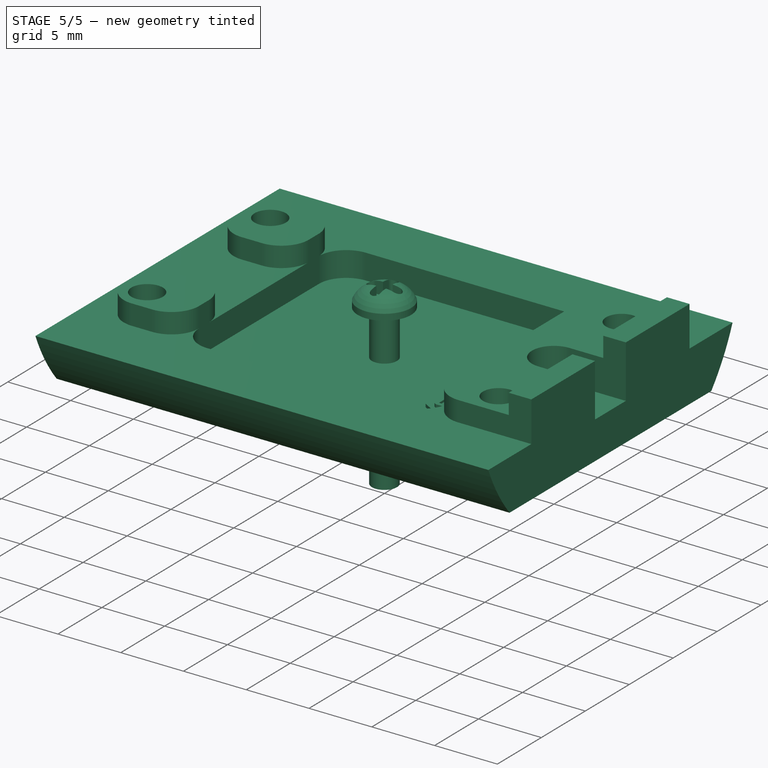
[diagram: stage 5 of 5 — iso view after this stage's code; geometry added in this stage tinted green]
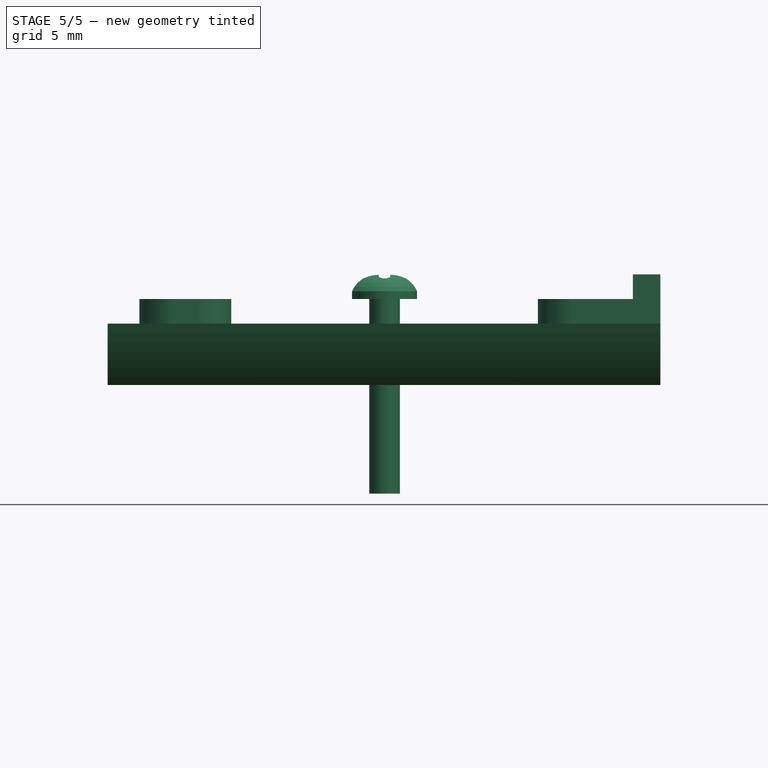
[diagram: stage 5 of 5 — front view after this stage's code; geometry added in this stage tinted green]
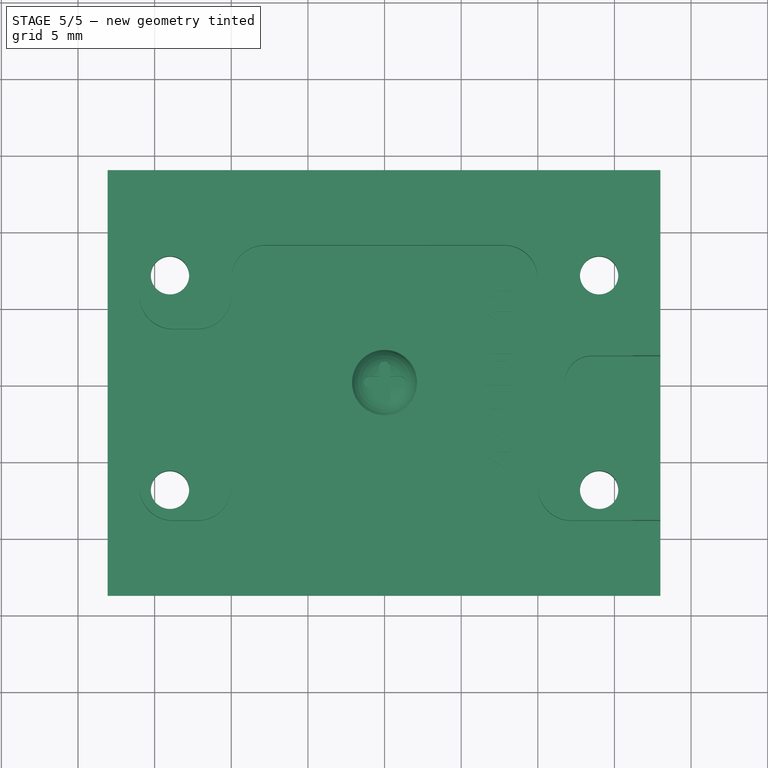
[diagram: stage 5 of 5 — top view after this stage's code; geometry added in this stage tinted green]
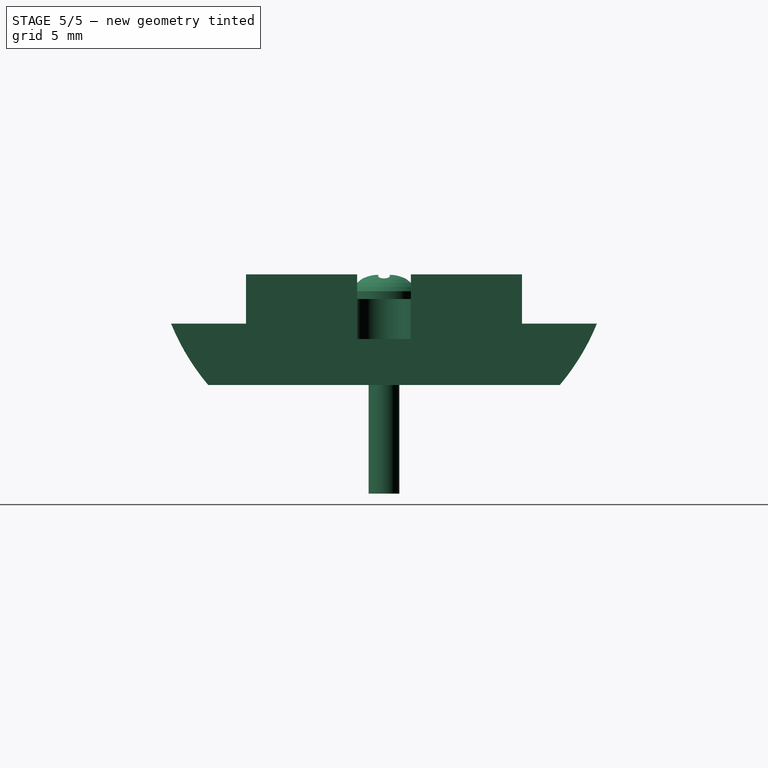
[diagram: stage 5 of 5 — right view after this stage's code; geometry added in this stage tinted green]
FEATURE [Sketcher::SketchObject] Sketch008
  FullyConstrained = true
  MapMode = 5
  Placement = pos=(0,0,0) rot=(1,0,0;1.5708rad)
  Support = -> [XZ_Plane043]
  sketch-geometry (5):
    g0: LineSegment StartX=0 StartY=0 StartZ=0 EndX=0 EndY=1.5748 EndZ=0
    g1: LineSegment StartX=0 StartY=1.5748 StartZ=0 EndX=0.5 EndY=1.5748 EndZ=0
    g2: ArcOfCircle CenterX=0.5 CenterY=-0.184835 CenterZ=0 NormalX=0 NormalY=0 NormalZ=1 AngleXU=0 Radius=1.75964 StartAngle=0.399754 EndAngle=1.5708
    g3: LineSegment StartX=2.1209 StartY=0.5 StartZ=0 EndX=2.1209 EndY=0 EndZ=0
    g4: LineSegment StartX=2.1209 StartY=0 StartZ=0 EndX=0 EndY=0 EndZ=0
  constraints (14):
    c: Coincident(g-1,g0)
    c: PointOnObject(g0,g-2)
    c: Coincident(g0,g1)
    c: Horizontal(g1)
    c: Tangent(g1,g2) = 1.5708
    c: Coincident(g2,g3)
    c: PointOnObject(g3,g-1)
    c: Vertical(g3)
    c: Coincident(g3,g4)
    c: Coincident(g4,g0)
    c: DistanceY(g0,g0) = 1.5748
    c: DistanceX(g0,g3) = 2.1209
    c: DistanceY(g3,g2) = 0.5
    c: DistanceX(g0,g1) = 0.5
FEATURE [PartDesign::Revolution] Revolution
  Angle = 360
  Axis = (0,-2e-16,1)
  Base = (0,0,0)
  Placement = pos=(0,0,0) rot=(1,0,0;1.5708rad)
  Profile = -> Sketch008
  ReferenceAxis = -> Sketch008 [V_Axis]
  Reversed = true
FEATURE [Sketcher::SketchObject] Sketch009
  FullyConstrained = true
  MapMode = 5
  Placement = pos=(0,0,1.5748) rot=(0,0,1;3.14159rad)
  Support = -> [Revolution]
  sketch-geometry (12):
    g0: ArcOfCircle CenterX=0 CenterY=1 CenterZ=0 NormalX=0 NormalY=0 NormalZ=1 AngleXU=0 Radius=0.375 StartAngle=4.11e-14 EndAngle=3.14159
    g1: ArcOfCircle CenterX=0 CenterY=-1 CenterZ=0 NormalX=0 NormalY=0 NormalZ=1 AngleXU=0 Radius=0.375 StartAngle=3.14159 EndAngle=6.28319
    g2: LineSegment StartX=-0.375 StartY=1 StartZ=0 EndX=-0.375 EndY=0.375 EndZ=0
    g3: LineSegment StartX=0.375 StartY=-1 StartZ=0 EndX=0.375 EndY=-0.375 EndZ=0
    g4: ArcOfCircle CenterX=-1 CenterY=0 CenterZ=0 NormalX=0 NormalY=0 NormalZ=1 AngleXU=0 Radius=0.375 StartAngle=1.5708 EndAngle=4.71239
    g5: ArcOfCircle CenterX=1 CenterY=0 CenterZ=0 NormalX=0 NormalY=0 NormalZ=1 AngleXU=0 Radius=0.375 StartAngle=4.71239 EndAngle=7.85398
    g6: LineSegment StartX=-1 StartY=-0.375 StartZ=0 EndX=-0.375 EndY=-0.375 EndZ=0
    g7: LineSegment StartX=1 StartY=0.375 StartZ=0 EndX=0.375 EndY=0.375 EndZ=0
    g8: LineSegment StartX=-0.375 StartY=-0.375 StartZ=0 EndX=-0.375 EndY=-1 EndZ=0
    g9: LineSegment StartX=-0.375 StartY=0.375 StartZ=0 EndX=-1 EndY=0.375 EndZ=0
    g10: LineSegment StartX=0.375 StartY=0.375 StartZ=0 EndX=0.375 EndY=1 EndZ=0
    g11: LineSegment StartX=0.375 StartY=-0.375 StartZ=0 EndX=1 EndY=-0.375 EndZ=0
  constraints (34):
    c: Tangent(g0,g2) = -1.5708
    c: Coincident(g8,g1) = -1.5708
    c: Tangent(g1,g3) = -1.5708
    c: Coincident(g10,g0) = -1.5708
    c: Equal(g0,g1)
    c: PointOnObject(g0,g-2)
    c: Symmetric(g1,g0,g-1)
    c: DistanceY(g1,g0) = 2
    c: DistanceX(g0,g0) = 0.75
    c: Tangent(g4,g6) = -1.5708
    c: Coincident(g11,g5) = -1.5708
    c: Tangent(g5,g7) = -1.5708
    c: Coincident(g9,g4) = -1.5708
    c: Equal(g4,g5)
    c: PointOnObject(g4,g-1)
    c: Symmetric(g4,g5,g-2)
    c: DistanceY(g5,g5) = 0.75
    c: DistanceX(g4,g5) = 2
    c: Coincident(g9,g2)
    c: Coincident(g10,g7)
    c: Coincident(g6,g8)
    c: Coincident(g11,g3)
    c: Vertical(g10)
    c: Vertical(g2)
    c: Vertical(g8)
    c: Vertical(g3)
    c: Horizontal(g9)
    c: Horizontal(g6)
    c: Horizontal(g11)
    c: Horizontal(g7)
    c: Horizontal(g0,g0)
    c: Horizontal(g1,g1)
    c: Vertical(g4,g4)
    c: Vertical(g5,g5)
FEATURE [PartDesign::Pocket] Pocket003
  BaseFeature = -> Revolution
  Direction = (0,2e-16,-1)
  Length = 1
  Length2 = 5
  Offset = 0.25
  Placement = pos=(0,0,0) rot=(1,0,0;1.5708rad)
  Profile = -> Sketch009
  ReferenceAxis = -> Sketch009 [N_Axis]
  Type = 0
FEATURE [Sketcher::SketchObject] Sketch010
  FullyConstrained = true
  MapMode = 5
  Placement = pos=(0,0,0) rot=(1,0,0;3.14159rad)
  Support = -> [Pocket003]
  sketch-geometry (1):
    g0: Circle CenterX=0 CenterY=0 CenterZ=0 NormalX=0 NormalY=0 NormalZ=1 AngleXU=0 Radius=1
  constraints (2):
    c: Coincident(g0,g-1)
    c: Diameter(g0) = 2
FEATURE [PartDesign::Pad] Pad004
  BaseFeature = -> Pocket003
  Direction = (0,2e-16,-1)
  Length = 12.7
  Length2 = 10
  Placement = pos=(0,0,0) rot=(1,0,0;1.5708rad)
  Profile = -> Sketch010
  ReferenceAxis = -> Sketch010 [N_Axis]
  Type = 0
FEATURE [PartDesign::Body] Body002  label="screw001"
  Group = -> [Sketch008,Revolution,Sketch009,Pocket003,Sketch010,Pad004]
  Origin = -> Origin043
  Placement = pos=(-14,7,7.75) rot=(0,0,1;0rad)
  Tip = -> Pad004
FEATURE [Sketcher::SketchObject] Sketch011
  FullyConstrained = true
  MapMode = 5
  Placement = pos=(0,0,0) rot=(1,0,0;1.5708rad)
  Support = -> [XZ_Plane044]
  sketch-geometry (5):
    g0: LineSegment StartX=0 StartY=0 StartZ=0 EndX=0 EndY=1.5748 EndZ=0
    g1: LineSegment StartX=0 StartY=1.5748 StartZ=0 EndX=0.5 EndY=1.5748 EndZ=0
    g2: ArcOfCircle CenterX=0.5 CenterY=-0.184835 CenterZ=0 NormalX=0 NormalY=0 NormalZ=1 AngleXU=0 Radius=1.75964 StartAngle=0.399754 EndAngle=1.5708
    g3: LineSegment StartX=2.1209 StartY=0.5 StartZ=0 EndX=2.1209 EndY=0 EndZ=0
    g4: LineSegment StartX=2.1209 StartY=0 StartZ=0 EndX=0 EndY=0 EndZ=0
  constraints (14):
    c: Coincident(g-1,g0)
    c: PointOnObject(g0,g-2)
    c: Coincident(g0,g1)
    c: Horizontal(g1)
    c: Tangent(g1,g2) = 1.5708
    c: Coincident(g2,g3)
    c: PointOnObject(g3,g-1)
    c: Vertical(g3)
    c: Coincident(g3,g4)
    c: Coincident(g4,g0)
    c: DistanceY(g0,g0) = 1.5748
    c: DistanceX(g0,g3) = 2.1209
    c: DistanceY(g3,g2) = 0.5
    c: DistanceX(g0,g1) = 0.5
FEATURE [PartDesign::Revolution] Revolution001
  Angle = 360
  Axis = (0,-2e-16,1)
  Base = (0,0,0)
  Placement = pos=(0,0,0) rot=(1,0,0;1.5708rad)
  Profile = -> Sketch011
  ReferenceAxis = -> Sketch011 [V_Axis]
  Reversed = true
FEATURE [Sketcher::SketchObject] Sketch012
  FullyConstrained = true
  MapMode = 5
  Placement = pos=(0,0,1.5748) rot=(0,0,1;3.14159rad)
  Support = -> [Revolution001]
  sketch-geometry (12):
    g0: ArcOfCircle CenterX=0 CenterY=1 CenterZ=0 NormalX=0 NormalY=0 NormalZ=1 AngleXU=0 Radius=0.375 StartAngle=4.11e-14 EndAngle=3.14159
    g1: ArcOfCircle CenterX=0 CenterY=-1 CenterZ=0 NormalX=0 NormalY=0 NormalZ=1 AngleXU=0 Radius=0.375 StartAngle=3.14159 EndAngle=6.28319
    g2: LineSegment StartX=-0.375 StartY=1 StartZ=0 EndX=-0.375 EndY=0.375 EndZ=0
    g3: LineSegment StartX=0.375 StartY=-1 StartZ=0 EndX=0.375 EndY=-0.375 EndZ=0
    g4: ArcOfCircle CenterX=-1 CenterY=0 CenterZ=0 NormalX=0 NormalY=0 NormalZ=1 AngleXU=0 Radius=0.375 StartAngle=1.5708 EndAngle=4.71239
    g5: ArcOfCircle CenterX=1 CenterY=0 CenterZ=0 NormalX=0 NormalY=0 NormalZ=1 AngleXU=0 Radius=0.375 StartAngle=4.71239 EndAngle=7.85398
    g6: LineSegment StartX=-1 StartY=-0.375 StartZ=0 EndX=-0.375 EndY=-0.375 EndZ=0
    g7: LineSegment StartX=1 StartY=0.375 StartZ=0 EndX=0.375 EndY=0.375 EndZ=0
    g8: LineSegment StartX=-0.375 StartY=-0.375 StartZ=0 EndX=-0.375 EndY=-1 EndZ=0
    g9: LineSegment StartX=-0.375 StartY=0.375 StartZ=0 EndX=-1 EndY=0.375 EndZ=0
    g10: LineSegment StartX=0.375 StartY=0.375 StartZ=0 EndX=0.375 EndY=1 EndZ=0
    g11: LineSegment StartX=0.375 StartY=-0.375 StartZ=0 EndX=1 EndY=-0.375 EndZ=0
  constraints (34):
    c: Tangent(g0,g2) = -1.5708
    c: Coincident(g8,g1) = -1.5708
    c: Tangent(g1,g3) = -1.5708
    c: Coincident(g10,g0) = -1.5708
    c: Equal(g0,g1)
    c: PointOnObject(g0,g-2)
    c: Symmetric(g1,g0,g-1)
    c: DistanceY(g1,g0) = 2
    c: DistanceX(g0,g0) = 0.75
    c: Tangent(g4,g6) = -1.5708
    c: Coincident(g11,g5) = -1.5708
    c: Tangent(g5,g7) = -1.5708
    c: Coincident(g9,g4) = -1.5708
    c: Equal(g4,g5)
    c: PointOnObject(g4,g-1)
    c: Symmetric(g4,g5,g-2)
    c: DistanceY(g5,g5) = 0.75
    c: DistanceX(g4,g5) = 2
    c: Coincident(g9,g2)
    c: Coincident(g10,g7)
    c: Coincident(g6,g8)
    c: Coincident(g11,g3)
    c: Vertical(g10)
    c: Vertical(g2)
    c: Vertical(g8)
    c: Vertical(g3)
    c: Horizontal(g9)
    c: Horizontal(g6)
    c: Horizontal(g11)
    c: Horizontal(g7)
    c: Horizontal(g0,g0)
    c: Horizontal(g1,g1)
    c: Vertical(g4,g4)
    c: Vertical(g5,g5)
FEATURE [PartDesign::Pocket] Pocket004
  BaseFeature = -> Revolution001
  Direction = (0,2e-16,-1)
  Length = 1
  Length2 = 5
  Offset = 0.25
  Placement = pos=(0,0,0) rot=(1,0,0;1.5708rad)
  Profile = -> Sketch012
  ReferenceAxis = -> Sketch012 [N_Axis]
  Type = 0
FEATURE [Sketcher::SketchObject] Sketch013
  FullyConstrained = true
  MapMode = 5
  Placement = pos=(0,0,0) rot=(1,0,0;3.14159rad)
  Support = -> [Pocket004]
  sketch-geometry (1):
    g0: Circle CenterX=0 CenterY=0 CenterZ=0 NormalX=0 NormalY=0 NormalZ=1 AngleXU=0 Radius=1
  constraints (2):
    c: Coincident(g0,g-1)
    c: Diameter(g0) = 2
FEATURE [PartDesign::Pad] Pad005
  BaseFeature = -> Pocket004
  Direction = (0,2e-16,-1)
  Length = 12.7
  Length2 = 10
  Placement = pos=(0,0,0) rot=(1,0,0;1.5708rad)
  Profile = -> Sketch013
  ReferenceAxis = -> Sketch013 [N_Axis]
  Type = 0
FEATURE [Sketcher::SketchObject] Sketch015
  FullyConstrained = true
  MapMode = 5
  Placement = pos=(0,0,1.5748) rot=(0,0,1;3.14159rad)
  Support = -> [Revolution002]
  sketch-geometry (12):
    g0: ArcOfCircle CenterX=0 CenterY=1 CenterZ=0 NormalX=0 NormalY=0 NormalZ=1 AngleXU=0 Radius=0.375 StartAngle=4.11e-14 EndAngle=3.14159
    g1: ArcOfCircle CenterX=0 CenterY=-1 CenterZ=0 NormalX=0 NormalY=0 NormalZ=1 AngleXU=0 Radius=0.375 StartAngle=3.14159 EndAngle=6.28319
    g2: LineSegment StartX=-0.375 StartY=1 StartZ=0 EndX=-0.375 EndY=0.375 EndZ=0
    g3: LineSegment StartX=0.375 StartY=-1 StartZ=0 EndX=0.375 EndY=-0.375 EndZ=0
    g4: ArcOfCircle CenterX=-1 CenterY=0 CenterZ=0 NormalX=0 NormalY=0 NormalZ=1 AngleXU=0 Radius=0.375 StartAngle=1.5708 EndAngle=4.71239
    g5: ArcOfCircle CenterX=1 CenterY=0 CenterZ=0 NormalX=0 NormalY=0 NormalZ=1 AngleXU=0 Radius=0.375 StartAngle=4.71239 EndAngle=7.85398
    g6: LineSegment StartX=-1 StartY=-0.375 StartZ=0 EndX=-0.375 EndY=-0.375 EndZ=0
    g7: LineSegment StartX=1 StartY=0.375 StartZ=0 EndX=0.375 EndY=0.375 EndZ=0
    g8: LineSegment StartX=-0.375 StartY=-0.375 StartZ=0 EndX=-0.375 EndY=-1 EndZ=0
    g9: LineSegment StartX=-0.375 StartY=0.375 StartZ=0 EndX=-1 EndY=0.375 EndZ=0
    g10: LineSegment StartX=0.375 StartY=0.375 StartZ=0 EndX=0.375 EndY=1 EndZ=0
    g11: LineSegment StartX=0.375 StartY=-0.375 StartZ=0 EndX=1 EndY=-0.375 EndZ=0
  constraints (34):
    c: Tangent(g0,g2) = -1.5708
    c: Coincident(g8,g1) = -1.5708
    c: Tangent(g1,g3) = -1.5708
    c: Coincident(g10,g0) = -1.5708
    c: Equal(g0,g1)
    c: PointOnObject(g0,g-2)
    c: Symmetric(g1,g0,g-1)
    c: DistanceY(g1,g0) = 2
    c: DistanceX(g0,g0) = 0.75
    c: Tangent(g4,g6) = -1.5708
    c: Coincident(g11,g5) = -1.5708
    c: Tangent(g5,g7) = -1.5708
    c: Coincident(g9,g4) = -1.5708
    c: Equal(g4,g5)
    c: PointOnObject(g4,g-1)
    c: Symmetric(g4,g5,g-2)
    c: DistanceY(g5,g5) = 0.75
    c: DistanceX(g4,g5) = 2
    c: Coincident(g9,g2)
    c: Coincident(g10,g7)
    c: Coincident(g6,g8)
    c: Coincident(g11,g3)
    c: Vertical(g10)
    c: Vertical(g2)
    c: Vertical(g8)
    c: Vertical(g3)
    c: Horizontal(g9)
    c: Horizontal(g6)
    c: Horizontal(g11)
    c: Horizontal(g7)
    c: Horizontal(g0,g0)
    c: Horizontal(g1,g1)
    c: Vertical(g4,g4)
    c: Vertical(g5,g5)
FEATURE [PartDesign::Pocket] Pocket005
  BaseFeature = -> Revolution002
  Direction = (0,2e-16,-1)
  Length = 1
  Length2 = 5
  Offset = 0.25
  Placement = pos=(0,0,0) rot=(1,0,0;1.5708rad)
  Profile = -> Sketch015
  ReferenceAxis = -> Sketch015 [N_Axis]
  Type = 0
FEATURE [Sketcher::SketchObject] Sketch016
  FullyConstrained = true
  MapMode = 5
  Placement = pos=(0,0,0) rot=(1,0,0;3.14159rad)
  Support = -> [Pocket005]
  sketch-geometry (1):
    g0: Circle CenterX=0 CenterY=0 CenterZ=0 NormalX=0 NormalY=0 NormalZ=1 AngleXU=0 Radius=1
  constraints (2):
    c: Coincident(g0,g-1)
    c: Diameter(g0) = 2
FEATURE [PartDesign::Pad] Pad006
  BaseFeature = -> Pocket005
  Direction = (0,2e-16,-1)
  Length = 12.7
  Length2 = 10
  Placement = pos=(0,0,0) rot=(1,0,0;1.5708rad)
  Profile = -> Sketch016
  ReferenceAxis = -> Sketch016 [N_Axis]
  Type = 0
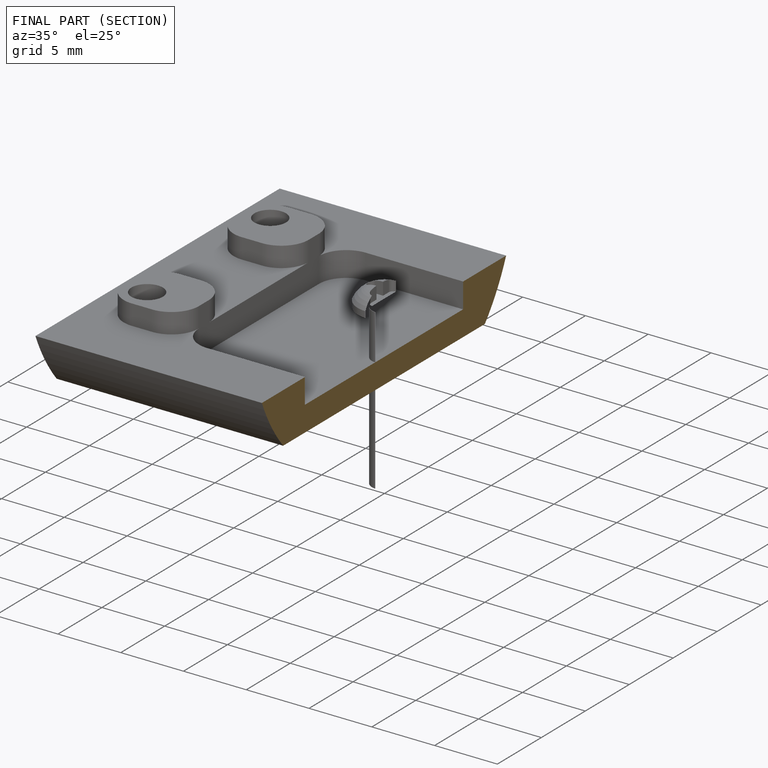
[diagram: finished part — half-section view (interior)]
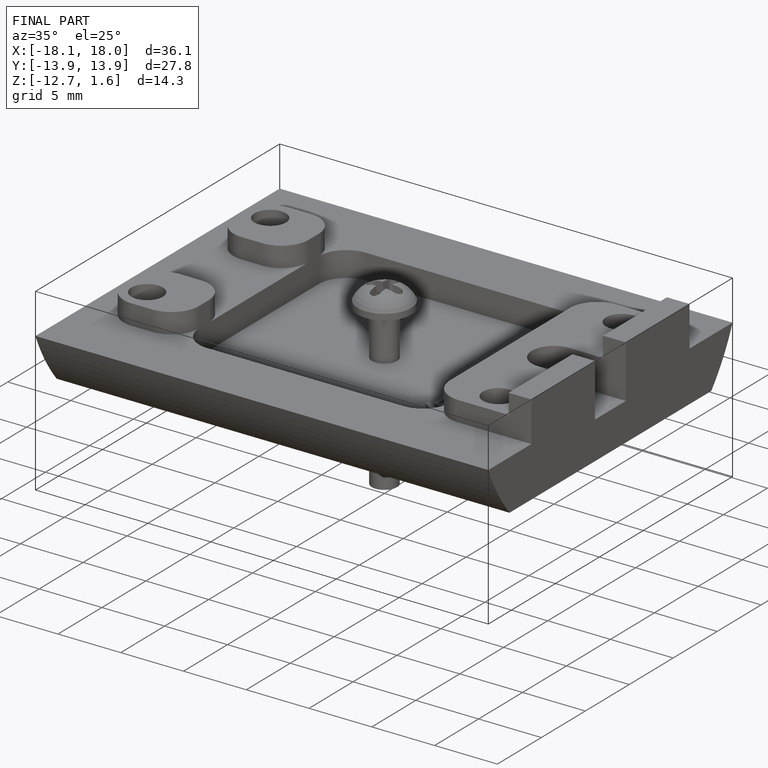
[diagram: finished part — iso view with bounding-box wireframe]
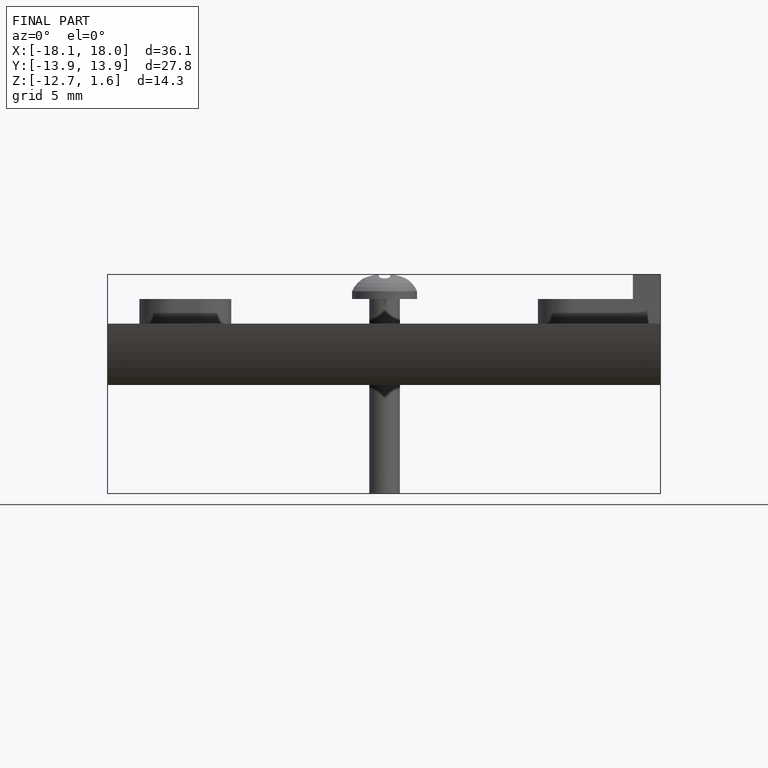
[diagram: finished part — front view with bounding-box wireframe]
